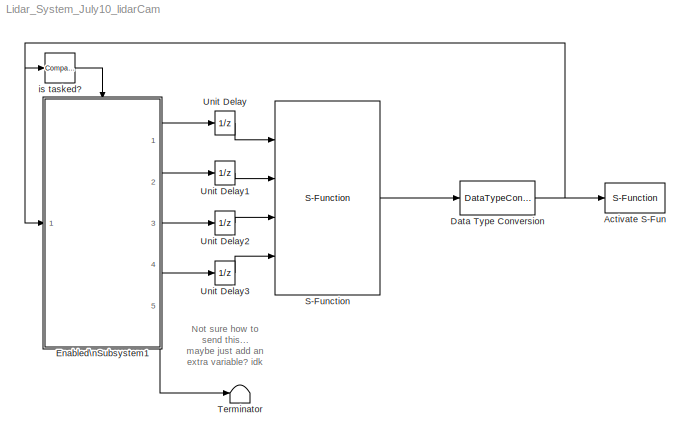
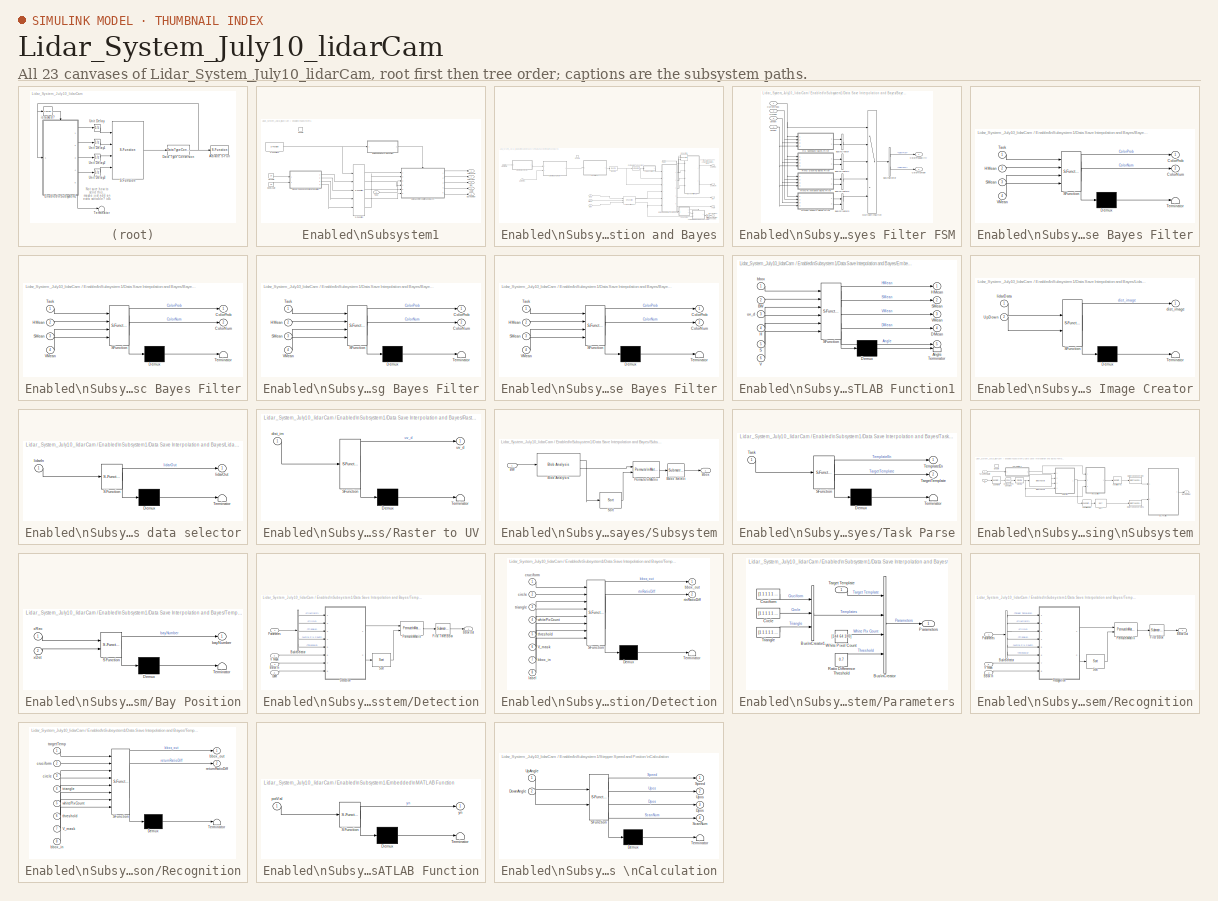
[diagram: thumbnail index - all 23 canvases of the model, root first then tree order]
MODEL Lidar_System_July10_lidarCam
KIND model
BLOCK [S-Function] Activate S-Fun
  EnableBusSupport = off
  FunctionName = printOut
  Ports = [1]
BLOCK [DataTypeConversion] Data Type Conversion
  OutDataType = fixdt(1, 16)
  OutDataTypeMode = uint32
  OutDataTypeStr = uint32
  OutScaling = 2^0
  RndMeth = Floor
  SaturateOnIntegerOverflow = off
BLOCK [SubSystem] Enabled\nSubsystem1
  FunctionWithSeparateData = off
  MaskHideContents = off
  MinAlgLoopOccurrences = off
  Opaque = off
  Ports = [1, 5, 1]
  PropExecContextOutsideSubsystem = off
  RTWSystemCode = Auto
  RequestExecContextInheritance = off
  TreatAsAtomicUnit = on
BLOCK [Outport] Enabled\nSubsystem1/Angle
  IconDisplay = Port number
  OutDataType = fixdt(1, 16)
  OutScaling = 2^0
  Port = 4
BLOCK [Outport] Enabled\nSubsystem1/Bay Number
  IconDisplay = Port number
  OutDataType = fixdt(1, 16)
  OutScaling = 2^0
  Port = 5
BLOCK [Outport] Enabled\nSubsystem1/ColorNum
  IconDisplay = Port number
  OutDataType = fixdt(1, 16)
  OutScaling = 2^0
  Port = 2
BLOCK [Outport] Enabled\nSubsystem1/ColorProb
  IconDisplay = Port number
  OutDataType = fixdt(1, 16)
  OutScaling = 2^0
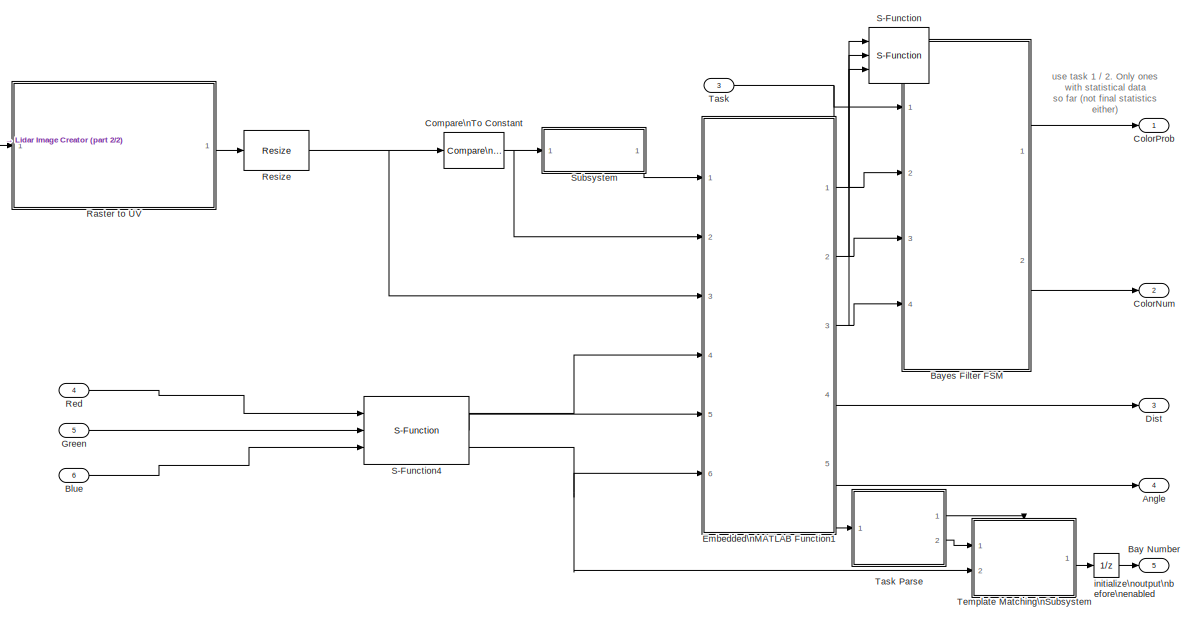
[diagram: Enabled\nSubsystem1/Data Save Interpolation and Bayes - part 1/2, right side, full height]
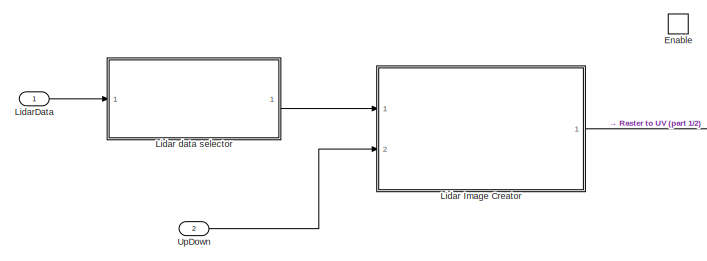
[diagram: Enabled\nSubsystem1/Data Save Interpolation and Bayes - part 2/2, top left region]
BLOCK [SubSystem] Enabled\nSubsystem1/Data Save Interpolation and Bayes
  FunctionWithSeparateData = off
  MaskHideContents = off
  MinAlgLoopOccurrences = off
  Opaque = off
  Ports = [6, 5, 1]
  PropExecContextOutsideSubsystem = off
  RTWSystemCode = Auto
  RequestExecContextInheritance = off
  TreatAsAtomicUnit = on
BLOCK [Outport] Enabled\nSubsystem1/Data Save Interpolation and Bayes/Angle
  IconDisplay = Port number
  OutDataType = fixdt(1, 16)
  OutScaling = 2^0
  Port = 4
BLOCK [Outport] Enabled\nSubsystem1/Data Save Interpolation and Bayes/Bay Number
  IconDisplay = Port number
  OutDataType = fixdt(1, 16)
  OutScaling = 2^0
  Port = 5
BLOCK [SubSystem] Enabled\nSubsystem1/Data Save Interpolation and Bayes/Bayes Filter FSM
  FunctionWithSeparateData = off
  MaskHideContents = off
  MinAlgLoopOccurrences = off
  Opaque = off
  Ports = [4, 2]
  PropExecContextOutsideSubsystem = off
  RTWSystemCode = Auto
  RequestExecContextInheritance = off
BLOCK [BusCreator] Enabled\nSubsystem1/Data Save Interpolation and Bayes/Bayes Filter FSM/Bus\nCreator
  DisplayOption = bar
  Inputs = 2
  Ports = [2, 1]
BLOCK [BusCreator] Enabled\nSubsystem1/Data Save Interpolation and Bayes/Bayes Filter FSM/Bus\nCreator1
  DisplayOption = bar
  Inputs = 2
  Ports = [2, 1]
BLOCK [BusCreator] Enabled\nSubsystem1/Data Save Interpolation and Bayes/Bayes Filter FSM/Bus\nCreator2
  DisplayOption = bar
  Inputs = 2
  Ports = [2, 1]
BLOCK [BusCreator] Enabled\nSubsystem1/Data Save Interpolation and Bayes/Bayes Filter FSM/Bus\nCreator3
  DisplayOption = bar
  Inputs = 2
  Ports = [2, 1]
BLOCK [BusSelector] Enabled\nSubsystem1/Data Save Interpolation and Bayes/Bayes Filter FSM/Bus\nSelector
  OutputSignals = ColorProb,ColorNum
  Ports = [1, 2]
BLOCK [Outport] Enabled\nSubsystem1/Data Save Interpolation and Bayes/Bayes Filter FSM/ColorNumber
  IconDisplay = Port number
  OutDataType = fixdt(1, 16)
  OutScaling = 2^0
  Port = 2
BLOCK [Outport] Enabled\nSubsystem1/Data Save Interpolation and Bayes/Bayes Filter FSM/ColorProbability
  IconDisplay = Port number
  OutDataType = fixdt(1, 16)
  OutScaling = 2^0
BLOCK [Inport] Enabled\nSubsystem1/Data Save Interpolation and Bayes/Bayes Filter FSM/CurrentTask
  IconDisplay = Port number
  OutDataType = fixdt(1, 16)
  OutScaling = 2^0
BLOCK [Inport] Enabled\nSubsystem1/Data Save Interpolation and Bayes/Bayes Filter FSM/HMean
  IconDisplay = Port number
  OutDataType = fixdt(1, 16)
  OutScaling = 2^0
  Port = 2
BLOCK [MultiPortSwitch] Enabled\nSubsystem1/Data Save Interpolation and Bayes/Bayes Filter FSM/Multiport\nSwitch
  InputSameDT = off
  Inputs = 4
  OutDataType = fixdt(1, 16)
  OutScaling = 2^0
  Ports = [5, 1]
  SaturateOnIntegerOverflow = off
BLOCK [SubSystem] Enabled\nSubsystem1/Data Save Interpolation and Bayes/Bayes Filter FSM/RG Speedgate Bayes Filter
  FunctionWithSeparateData = off
  MaskDescription = Embedded MATLAB block
  MaskDisplay = disp('BayesFilter');
  MaskHideContents = off
  MaskIconFrame = on
  MaskIconOpaque = off
  MaskIconRotate = none
  MaskIconUnits = autoscale
  MaskPortRotate = default
  MaskSelfModifiable = on
  MaskType = Stateflow
  MinAlgLoopOccurrences = off
  Opaque = off
  PermitHierarchicalResolution = ExplicitOnly
  Ports = [4, 2]
  PropExecContextOutsideSubsystem = off
  RTWSystemCode = Auto
  RequestExecContextInheritance = off
BLOCK [Demux] Enabled\nSubsystem1/Data Save Interpolation and Bayes/Bayes Filter FSM/RG Speedgate Bayes Filter/ Demux 
  Outputs = 1
  Ports = [1, 1]
BLOCK [S-Function] Enabled\nSubsystem1/Data Save Interpolation and Bayes/Bayes Filter FSM/RG Speedgate Bayes Filter/ SFunction 
  EnableBusSupport = on
  FunctionName = sf_sfun
  PortCounts = [4 3]
  Ports = [4, 3]
  Tag = Stateflow S-Function Lidar_System_July10_lidarCam 1
BLOCK [Terminator] Enabled\nSubsystem1/Data Save Interpolation and Bayes/Bayes Filter FSM/RG Speedgate Bayes Filter/ Terminator 
BLOCK [Outport] Enabled\nSubsystem1/Data Save Interpolation and Bayes/Bayes Filter FSM/RG Speedgate Bayes Filter/ColorNum
  IconDisplay = Port number
  Port = 2
BLOCK [Outport] Enabled\nSubsystem1/Data Save Interpolation and Bayes/Bayes Filter FSM/RG Speedgate Bayes Filter/ColorProb
  IconDisplay = Port number
  OutDataType = sfix(16)
  OutScaling = 2^0
BLOCK [Inport] Enabled\nSubsystem1/Data Save Interpolation and Bayes/Bayes Filter FSM/RG Speedgate Bayes Filter/HMean
  IconDisplay = Port number
  OutDataType = sfix(16)
  OutScaling = 2^0
  Port = 2
BLOCK [Inport] Enabled\nSubsystem1/Data Save Interpolation and Bayes/Bayes Filter FSM/RG Speedgate Bayes Filter/SMean
  IconDisplay = Port number
  Port = 3
BLOCK [Inport] Enabled\nSubsystem1/Data Save Interpolation and Bayes/Bayes Filter FSM/RG Speedgate Bayes Filter/Task
  IconDisplay = Port number
BLOCK [Inport] Enabled\nSubsystem1/Data Save Interpolation and Bayes/Bayes Filter FSM/RG Speedgate Bayes Filter/VMean
  IconDisplay = Port number
  Port = 4
BLOCK [SubSystem] Enabled\nSubsystem1/Data Save Interpolation and Bayes/Bayes Filter FSM/RGBYK Acoustic Bayes Filter
  FunctionWithSeparateData = off
  MaskDescription = Embedded MATLAB block
  MaskDisplay = disp('BayesFilter');
  MaskHideContents = off
  MaskIconFrame = on
  MaskIconOpaque = off
  MaskIconRotate = none
  MaskIconUnits = autoscale
  MaskPortRotate = default
  MaskSelfModifiable = on
  MaskType = Stateflow
  MinAlgLoopOccurrences = off
  Opaque = off
  PermitHierarchicalResolution = ExplicitOnly
  Ports = [4, 2]
  PropExecContextOutsideSubsystem = off
  RTWSystemCode = Auto
  RequestExecContextInheritance = off
BLOCK [Demux] Enabled\nSubsystem1/Data Save Interpolation and Bayes/Bayes Filter FSM/RGBYK Acoustic Bayes Filter/ Demux 
  Outputs = 1
  Ports = [1, 1]
BLOCK [S-Function] Enabled\nSubsystem1/Data Save Interpolation and Bayes/Bayes Filter FSM/RGBYK Acoustic Bayes Filter/ SFunction 
  EnableBusSupport = on
  FunctionName = sf_sfun
  PortCounts = [4 3]
  Ports = [4, 3]
  Tag = Stateflow S-Function Lidar_System_July10_lidarCam 3
BLOCK [Terminator] Enabled\nSubsystem1/Data Save Interpolation and Bayes/Bayes Filter FSM/RGBYK Acoustic Bayes Filter/ Terminator 
BLOCK [Outport] Enabled\nSubsystem1/Data Save Interpolation and Bayes/Bayes Filter FSM/RGBYK Acoustic Bayes Filter/ColorNum
  IconDisplay = Port number
  Port = 2
BLOCK [Outport] Enabled\nSubsystem1/Data Save Interpolation and Bayes/Bayes Filter FSM/RGBYK Acoustic Bayes Filter/ColorProb
  IconDisplay = Port number
  OutDataType = sfix(16)
  OutScaling = 2^0
BLOCK [Inport] Enabled\nSubsystem1/Data Save Interpolation and Bayes/Bayes Filter FSM/RGBYK Acoustic Bayes Filter/HMean
  IconDisplay = Port number
  OutDataType = sfix(16)
  OutScaling = 2^0
  Port = 2
BLOCK [Inport] Enabled\nSubsystem1/Data Save Interpolation and Bayes/Bayes Filter FSM/RGBYK Acoustic Bayes Filter/SMean
  IconDisplay = Port number
  Port = 3
BLOCK [Inport] Enabled\nSubsystem1/Data Save Interpolation and Bayes/Bayes Filter FSM/RGBYK Acoustic Bayes Filter/Task
  IconDisplay = Port number
BLOCK [Inport] Enabled\nSubsystem1/Data Save Interpolation and Bayes/Bayes Filter FSM/RGBYK Acoustic Bayes Filter/VMean
  IconDisplay = Port number
  Port = 4
BLOCK [SubSystem] Enabled\nSubsystem1/Data Save Interpolation and Bayes/Bayes Filter FSM/RWG Docking Bayes Filter
  FunctionWithSeparateData = off
  MaskDescription = Embedded MATLAB block
  MaskDisplay = disp('BayesFilter');
  MaskHideContents = off
  MaskIconFrame = on
  MaskIconOpaque = off
  MaskIconRotate = none
  MaskIconUnits = autoscale
  MaskPortRotate = default
  MaskSelfModifiable = on
  MaskType = Stateflow
  MinAlgLoopOccurrences = off
  Opaque = off
  PermitHierarchicalResolution = ExplicitOnly
  Ports = [4, 2]
  PropExecContextOutsideSubsystem = off
  RTWSystemCode = Auto
  RequestExecContextInheritance = off
BLOCK [Demux] Enabled\nSubsystem1/Data Save Interpolation and Bayes/Bayes Filter FSM/RWG Docking Bayes Filter/ Demux 
  Outputs = 1
  Ports = [1, 1]
BLOCK [S-Function] Enabled\nSubsystem1/Data Save Interpolation and Bayes/Bayes Filter FSM/RWG Docking Bayes Filter/ SFunction 
  EnableBusSupport = on
  FunctionName = sf_sfun
  PortCounts = [4 3]
  Ports = [4, 3]
  Tag = Stateflow S-Function Lidar_System_July10_lidarCam 9
BLOCK [Terminator] Enabled\nSubsystem1/Data Save Interpolation and Bayes/Bayes Filter FSM/RWG Docking Bayes Filter/ Terminator 
BLOCK [Outport] Enabled\nSubsystem1/Data Save Interpolation and Bayes/Bayes Filter FSM/RWG Docking Bayes Filter/ColorNum
  IconDisplay = Port number
  Port = 2
BLOCK [Outport] Enabled\nSubsystem1/Data Save Interpolation and Bayes/Bayes Filter FSM/RWG Docking Bayes Filter/ColorProb
  IconDisplay = Port number
  OutDataType = sfix(16)
  OutScaling = 2^0
BLOCK [Inport] Enabled\nSubsystem1/Data Save Interpolation and Bayes/Bayes Filter FSM/RWG Docking Bayes Filter/HMean
  IconDisplay = Port number
  OutDataType = sfix(16)
  OutScaling = 2^0
  Port = 2
BLOCK [Inport] Enabled\nSubsystem1/Data Save Interpolation and Bayes/Bayes Filter FSM/RWG Docking Bayes Filter/SMean
  IconDisplay = Port number
  Port = 3
BLOCK [Inport] Enabled\nSubsystem1/Data Save Interpolation and Bayes/Bayes Filter FSM/RWG Docking Bayes Filter/Task
  IconDisplay = Port number
BLOCK [Inport] Enabled\nSubsystem1/Data Save Interpolation and Bayes/Bayes Filter FSM/RWG Docking Bayes Filter/VMean
  IconDisplay = Port number
  Port = 4
BLOCK [SubSystem] Enabled\nSubsystem1/Data Save Interpolation and Bayes/Bayes Filter FSM/RWGYK Avoidance Bayes Filter
  FunctionWithSeparateData = off
  MaskDescription = Embedded MATLAB block
  MaskDisplay = disp('BayesFilter');
  MaskHideContents = off
  MaskIconFrame = on
  MaskIconOpaque = off
  MaskIconRotate = none
  MaskIconUnits = autoscale
  MaskPortRotate = default
  MaskSelfModifiable = on
  MaskType = Stateflow
  MinAlgLoopOccurrences = off
  Opaque = off
  PermitHierarchicalResolution = ExplicitOnly
  Ports = [4, 2]
  PropExecContextOutsideSubsystem = off
  RTWSystemCode = Auto
  RequestExecContextInheritance = off
BLOCK [Demux] Enabled\nSubsystem1/Data Save Interpolation and Bayes/Bayes Filter FSM/RWGYK Avoidance Bayes Filter/ Demux 
  Outputs = 1
  Ports = [1, 1]
BLOCK [S-Function] Enabled\nSubsystem1/Data Save Interpolation and Bayes/Bayes Filter FSM/RWGYK Avoidance Bayes Filter/ SFunction 
  EnableBusSupport = on
  FunctionName = sf_sfun
  PortCounts = [4 3]
  Ports = [4, 3]
  Tag = Stateflow S-Function Lidar_System_July10_lidarCam 2
BLOCK [Terminator] Enabled\nSubsystem1/Data Save Interpolation and Bayes/Bayes Filter FSM/RWGYK Avoidance Bayes Filter/ Terminator 
BLOCK [Outport] Enabled\nSubsystem1/Data Save Interpolation and Bayes/Bayes Filter FSM/RWGYK Avoidance Bayes Filter/ColorNum
  IconDisplay = Port number
  Port = 2
BLOCK [Outport] Enabled\nSubsystem1/Data Save Interpolation and Bayes/Bayes Filter FSM/RWGYK Avoidance Bayes Filter/ColorProb
  IconDisplay = Port number
  OutDataType = sfix(16)
  OutScaling = 2^0
BLOCK [Inport] Enabled\nSubsystem1/Data Save Interpolation and Bayes/Bayes Filter FSM/RWGYK Avoidance Bayes Filter/HMean
  IconDisplay = Port number
  OutDataType = sfix(16)
  OutScaling = 2^0
  Port = 2
BLOCK [Inport] Enabled\nSubsystem1/Data Save Interpolation and Bayes/Bayes Filter FSM/RWGYK Avoidance Bayes Filter/SMean
  IconDisplay = Port number
  Port = 3
BLOCK [Inport] Enabled\nSubsystem1/Data Save Interpolation and Bayes/Bayes Filter FSM/RWGYK Avoidance Bayes Filter/Task
  IconDisplay = Port number
BLOCK [Inport] Enabled\nSubsystem1/Data Save Interpolation and Bayes/Bayes Filter FSM/RWGYK Avoidance Bayes Filter/VMean
  IconDisplay = Port number
  Port = 4
BLOCK [Inport] Enabled\nSubsystem1/Data Save Interpolation and Bayes/Bayes Filter FSM/SMean
  IconDisplay = Port number
  OutDataType = fixdt(1, 16)
  OutScaling = 2^0
  Port = 3
BLOCK [Inport] Enabled\nSubsystem1/Data Save Interpolation and Bayes/Bayes Filter FSM/VMean
  IconDisplay = Port number
  OutDataType = fixdt(1, 16)
  OutScaling = 2^0
  Port = 4
BLOCK [Inport] Enabled\nSubsystem1/Data Save Interpolation and Bayes/Blue
  IconDisplay = Port number
  OutDataType = fixdt(1, 16)
  OutScaling = 2^0
  Port = 6
BLOCK [Outport] Enabled\nSubsystem1/Data Save Interpolation and Bayes/ColorNum
  IconDisplay = Port number
  OutDataType = fixdt(1, 16)
  OutScaling = 2^0
  Port = 2
BLOCK [Outport] Enabled\nSubsystem1/Data Save Interpolation and Bayes/ColorProb
  IconDisplay = Port number
  OutDataType = fixdt(1, 16)
  OutScaling = 2^0
BLOCK [Reference] Enabled\nSubsystem1/Data Save Interpolation and Bayes/Compare\nTo Constant  REF=simulink/Logic and Bit\nOperations/Compare\nTo Constant
  FunctionWithSeparateData = off
  LogicOutDataTypeMode = boolean
  Ports = [1, 1]
  RTWMemSecDataConstants = Inherit from model
  RTWMemSecDataInternal = Inherit from model
  RTWMemSecDataParameters = Inherit from model
  RTWMemSecFuncExecute = Inherit from model
  RTWMemSecFuncInitTerm = Inherit from model
  ShowPortLabels = FromPortIcon
  SourceBlock = simulink/Logic and Bit\nOperations/Compare\nTo Constant
  SourceType = Compare To Constant
  SystemSampleTime = -1
  ZeroCross = off
  const = 3000
  relop = <=
BLOCK [Outport] Enabled\nSubsystem1/Data Save Interpolation and Bayes/Dist
  IconDisplay = Port number
  OutDataType = fixdt(1, 16)
  OutScaling = 2^0
  Port = 3
BLOCK [SubSystem] Enabled\nSubsystem1/Data Save Interpolation and Bayes/Embedded\nMATLAB Function1
  FunctionWithSeparateData = off
  MaskDescription = Embedded MATLAB block
  MaskDisplay = disp('bbox_hist');
  MaskHideContents = off
  MaskIconFrame = on
  MaskIconOpaque = off
  MaskIconRotate = none
  MaskIconUnits = autoscale
  MaskPortRotate = default
  MaskSelfModifiable = on
  MaskType = Stateflow
  MinAlgLoopOccurrences = off
  Opaque = off
  PermitHierarchicalResolution = ExplicitOnly
  Ports = [6, 5]
  PropExecContextOutsideSubsystem = off
  RTWSystemCode = Auto
  RequestExecContextInheritance = off
BLOCK [Demux] Enabled\nSubsystem1/Data Save Interpolation and Bayes/Embedded\nMATLAB Function1/ Demux 
  Outputs = 1
  Ports = [1, 1]
BLOCK [S-Function] Enabled\nSubsystem1/Data Save Interpolation and Bayes/Embedded\nMATLAB Function1/ SFunction 
  EnableBusSupport = on
  FunctionName = sf_sfun
  PortCounts = [6 6]
  Ports = [6, 6]
  Tag = Stateflow S-Function Lidar_System_July10_lidarCam 8
BLOCK [Terminator] Enabled\nSubsystem1/Data Save Interpolation and Bayes/Embedded\nMATLAB Function1/ Terminator 
BLOCK [Outport] Enabled\nSubsystem1/Data Save Interpolation and Bayes/Embedded\nMATLAB Function1/Angle
  IconDisplay = Port number
  Port = 5
BLOCK [Inport] Enabled\nSubsystem1/Data Save Interpolation and Bayes/Embedded\nMATLAB Function1/BW
  IconDisplay = Port number
  Port = 2
BLOCK [Outport] Enabled\nSubsystem1/Data Save Interpolation and Bayes/Embedded\nMATLAB Function1/DMean
  IconDisplay = Port number
  Port = 4
BLOCK [Inport] Enabled\nSubsystem1/Data Save Interpolation and Bayes/Embedded\nMATLAB Function1/H
  IconDisplay = Port number
  Port = 4
BLOCK [Outport] Enabled\nSubsystem1/Data Save Interpolation and Bayes/Embedded\nMATLAB Function1/HMean
  IconDisplay = Port number
  OutDataType = sfix(16)
  OutScaling = 2^0
BLOCK [Inport] Enabled\nSubsystem1/Data Save Interpolation and Bayes/Embedded\nMATLAB Function1/S
  IconDisplay = Port number
  Port = 5
BLOCK [Outport] Enabled\nSubsystem1/Data Save Interpolation and Bayes/Embedded\nMATLAB Function1/SMean
  IconDisplay = Port number
  Port = 2
BLOCK [Inport] Enabled\nSubsystem1/Data Save Interpolation and Bayes/Embedded\nMATLAB Function1/V
  IconDisplay = Port number
  Port = 6
BLOCK [Outport] Enabled\nSubsystem1/Data Save Interpolation and Bayes/Embedded\nMATLAB Function1/VMean
  IconDisplay = Port number
  Port = 3
BLOCK [Inport] Enabled\nSubsystem1/Data Save Interpolation and Bayes/Embedded\nMATLAB Function1/bbox
  IconDisplay = Port number
  OutDataType = sfix(16)
  OutScaling = 2^0
BLOCK [Inport] Enabled\nSubsystem1/Data Save Interpolation and Bayes/Embedded\nMATLAB Function1/uv_d
  IconDisplay = Port number
  Port = 3
BLOCK [EnablePort] Enabled\nSubsystem1/Data Save Interpolation and Bayes/Enable
  Ports = []
BLOCK [Inport] Enabled\nSubsystem1/Data Save Interpolation and Bayes/Green
  IconDisplay = Port number
  OutDataType = fixdt(1, 16)
  OutScaling = 2^0
  Port = 5
BLOCK [SubSystem] Enabled\nSubsystem1/Data Save Interpolation and Bayes/Lidar Image Creator
  FunctionWithSeparateData = off
  MaskDescription = Embedded MATLAB block
  MaskDisplay = disp('scanImages');
  MaskHideContents = off
  MaskIconFrame = on
  MaskIconOpaque = off
  MaskIconRotate = none
  MaskIconUnits = autoscale
  MaskPortRotate = default
  MaskSelfModifiable = on
  MaskType = Stateflow
  MinAlgLoopOccurrences = off
  Opaque = off
  PermitHierarchicalResolution = ExplicitOnly
  Ports = [2, 1]
  PropExecContextOutsideSubsystem = off
  RTWSystemCode = Auto
  RequestExecContextInheritance = off
BLOCK [Demux] Enabled\nSubsystem1/Data Save Interpolation and Bayes/Lidar Image Creator/ Demux 
  Outputs = 1
  Ports = [1, 1]
BLOCK [S-Function] Enabled\nSubsystem1/Data Save Interpolation and Bayes/Lidar Image Creator/ SFunction 
  EnableBusSupport = on
  FunctionName = sf_sfun
  PortCounts = [2 2]
  Ports = [2, 2]
  Tag = Stateflow S-Function Lidar_System_July10_lidarCam 10
BLOCK [Terminator] Enabled\nSubsystem1/Data Save Interpolation and Bayes/Lidar Image Creator/ Terminator 
BLOCK [Inport] Enabled\nSubsystem1/Data Save Interpolation and Bayes/Lidar Image Creator/UpDown
  IconDisplay = Port number
  Port = 2
BLOCK [Outport] Enabled\nSubsystem1/Data Save Interpolation and Bayes/Lidar Image Creator/dist_image
  IconDisplay = Port number
  OutDataType = sfix(16)
  OutScaling = 2^0
BLOCK [Inport] Enabled\nSubsystem1/Data Save Interpolation and Bayes/Lidar Image Creator/lidarData
  IconDisplay = Port number
  OutDataType = sfix(16)
  OutScaling = 2^0
BLOCK [SubSystem] Enabled\nSubsystem1/Data Save Interpolation and Bayes/Lidar data selector
  FunctionWithSeparateData = off
  MaskDescription = Embedded MATLAB block
  MaskDisplay = disp('data_selector');
  MaskHideContents = off
  MaskIconFrame = on
  MaskIconOpaque = off
  MaskIconRotate = none
  MaskIconUnits = autoscale
  MaskPortRotate = default
  MaskSelfModifiable = on
  MaskType = Stateflow
  MinAlgLoopOccurrences = off
  Opaque = off
  PermitHierarchicalResolution = ExplicitOnly
  Ports = [1, 1]
  PropExecContextOutsideSubsystem = off
  RTWSystemCode = Auto
  RequestExecContextInheritance = off
BLOCK [Demux] Enabled\nSubsystem1/Data Save Interpolation and Bayes/Lidar data selector/ Demux 
  Outputs = 1
  Ports = [1, 1]
BLOCK [S-Function] Enabled\nSubsystem1/Data Save Interpolation and Bayes/Lidar data selector/ SFunction 
  EnableBusSupport = on
  FunctionName = sf_sfun
  PortCounts = [1 2]
  Ports = [1, 2]
  Tag = Stateflow S-Function Lidar_System_July10_lidarCam 11
BLOCK [Terminator] Enabled\nSubsystem1/Data Save Interpolation and Bayes/Lidar data selector/ Terminator 
BLOCK [Inport] Enabled\nSubsystem1/Data Save Interpolation and Bayes/Lidar data selector/lidarIn
  IconDisplay = Port number
  OutDataType = sfix(16)
  OutScaling = 2^0
BLOCK [Outport] Enabled\nSubsystem1/Data Save Interpolation and Bayes/Lidar data selector/lidarOut
  IconDisplay = Port number
  OutDataType = sfix(16)
  OutScaling = 2^0
BLOCK [Inport] Enabled\nSubsystem1/Data Save Interpolation and Bayes/LidarData
  IconDisplay = Port number
  OutDataType = fixdt(1, 16)
  OutScaling = 2^0
BLOCK [SubSystem] Enabled\nSubsystem1/Data Save Interpolation and Bayes/Raster to UV
  FunctionWithSeparateData = off
  MaskDescription = Embedded MATLAB block
  MaskDisplay = disp('AngleMatch');
  MaskHideContents = off
  MaskIconFrame = on
  MaskIconOpaque = off
  MaskIconRotate = none
  MaskIconUnits = autoscale
  MaskPortRotate = default
  MaskSelfModifiable = on
  MaskType = Stateflow
  MinAlgLoopOccurrences = off
  Opaque = off
  PermitHierarchicalResolution = ExplicitOnly
  Ports = [1, 1]
  PropExecContextOutsideSubsystem = off
  RTWSystemCode = Auto
  RequestExecContextInheritance = off
BLOCK [Demux] Enabled\nSubsystem1/Data Save Interpolation and Bayes/Raster to UV/ Demux 
  Outputs = 1
  Ports = [1, 1]
BLOCK [S-Function] Enabled\nSubsystem1/Data Save Interpolation and Bayes/Raster to UV/ SFunction 
  EnableBusSupport = on
  FunctionName = sf_sfun
  PortCounts = [1 2]
  Ports = [1, 2]
  Tag = Stateflow S-Function Lidar_System_July10_lidarCam 5
BLOCK [Terminator] Enabled\nSubsystem1/Data Save Interpolation and Bayes/Raster to UV/ Terminator 
BLOCK [Inport] Enabled\nSubsystem1/Data Save Interpolation and Bayes/Raster to UV/dist_im
  IconDisplay = Port number
BLOCK [Outport] Enabled\nSubsystem1/Data Save Interpolation and Bayes/Raster to UV/uv_d
  IconDisplay = Port number
  OutDataType = sfix(16)
  OutScaling = 2^0
BLOCK [Inport] Enabled\nSubsystem1/Data Save Interpolation and Bayes/Red
  IconDisplay = Port number
  OutDataType = fixdt(1, 16)
  OutScaling = 2^0
  Port = 4
BLOCK [Reference] Enabled\nSubsystem1/Data Save Interpolation and Bayes/Resize  REF=vipgeotforms/Resize
  DialogController = vipDDGCreate
  DialogControllerArgs = DataTag0
  LockScale = off
  Ports = [1, 1]
  SourceBlock = vipgeotforms/Resize
  SourceType = Resize
  accumFracLength = 10
  accumMode = Same as product output
  accumWordLength = 32
  antialias = on
  firstCoeffFracLength = 31
  firstCoeffMode = Same word length as input
  firstCoeffWordLength = 32
  interp_method = Bilinear
  outCols = 25
  outRows = 25
  outRowsCols = [480 640]
  outputFracLength = 10
  outputMode = Same as input
  outputWordLength = 32
  overflowMode = on
  prodOutputFracLength = 10
  prodOutputMode = Binary point scaling
  prodOutputWordLength = 32
  rfactor = [200 150]
  roiFlag = off
  roundingMode = Nearest
  specify = Number of output rows and columns
  useROI = off
BLOCK [S-Function] Enabled\nSubsystem1/Data Save Interpolation and Bayes/S-Function
  EnableBusSupport = off
  FunctionName = meanPrint
  Ports = [3]
BLOCK [S-Function] Enabled\nSubsystem1/Data Save Interpolation and Bayes/S-Function4
  EnableBusSupport = off
  FunctionName = rgbtohsv_sfunV2
  Ports = [3, 3]
BLOCK [SubSystem] Enabled\nSubsystem1/Data Save Interpolation and Bayes/Subsystem
  FunctionWithSeparateData = off
  MaskHideContents = off
  MinAlgLoopOccurrences = off
  Opaque = off
  Ports = [1, 1]
  PropExecContextOutsideSubsystem = off
  RTWSystemCode = Auto
  RequestExecContextInheritance = off
BLOCK [Inport] Enabled\nSubsystem1/Data Save Interpolation and Bayes/Subsystem/BW
  IconDisplay = Port number
  OutDataType = fixdt(1, 16)
  OutScaling = 2^0
BLOCK [Outport] Enabled\nSubsystem1/Data Save Interpolation and Bayes/Subsystem/Bbox
  IconDisplay = Port number
  OutDataType = fixdt(1, 16)
  OutScaling = 2^0
BLOCK [Reference] Enabled\nSubsystem1/Data Save Interpolation and Bayes/Subsystem/Bbox Select  REF=dspmtrx3/Submatrix
  ColEndIndex = 1
  ColEndMode = Last
  ColSpan = One column
  ColStartIndex = 1
  ColStartMode = First
  Ports = [1, 1]
  RowEndIndex = 1
  RowEndMode = Last
  RowSpan = All rows
  RowStartIndex = 1
  RowStartMode = First
  SourceBlock = dspmtrx3/Submatrix
  SourceType = Submatrix
BLOCK [Reference] Enabled\nSubsystem1/Data Save Interpolation and Bayes/Subsystem/Blob Analysis  REF=vipstatistics/Blob Analysis
  DialogController = vipDDGCreate
  DialogControllerArgs = DataTag1
  LockScale = off
  Ports = [1, 2]
  SourceBlock = vipstatistics/Blob Analysis
  SourceType = Blob Analysis
  accumFracLength = 0
  accumMode = Binary point scaling
  accumWordLength = 32
  angle = off
  area = on
  bBox = on
  centroid = off
  conn = 8
  eccentricity = off
  equivDiameterSq = off
  excludeBorderBlob = off
  extent = off
  fillValues = -1
  firstCoeffFracLength = 14
  firstCoeffMode = Binary point scaling
  firstCoeffWordLength = 16
  isCount = off
  isFill = on
  isLabel = off
  isOutVarDim = off
  majorAxis = off
  maxArea = intmax('uint32')
  maxBlobs = 20
  memoryFracLength = 16
  memoryMode = Same as product output
  memoryWordLength = 32
  minArea = 20
  minorAxis = off
  outDT = double
  outputFracLength = 16
  outputMode = Binary point scaling
  outputWordLength = 32
  overflowMode = off
  perimeter = off
  prodOutputFracLength = 16
  prodOutputMode = Binary point scaling
  prodOutputWordLength = 32
  roundingMode = Floor
  secondCoeffFracLength = 16
  secondCoeffMode = Binary point scaling
  secondCoeffWordLength = 32
  useMaxArea = off
  useMinArea = on
  warnIfNumBlobsExceeded = on
BLOCK [Reference] Enabled\nSubsystem1/Data Save Interpolation and Bayes/Subsystem/Permute\nMatrix  REF=dspmtrx3/Permute\nMatrix
  Ports = [2, 1]
  SourceBlock = dspmtrx3/Permute\nMatrix
  SourceType = Permute Matrix
  ZeroOneIdxMode = One-based
  checkDims = off
  errmode = Clip index
  mode = Columns
BLOCK [Reference] Enabled\nSubsystem1/Data Save Interpolation and Bayes/Subsystem/Sort  REF=dspstat3/Sort
  DialogController = dspDDGCreate
  DialogControllerArgs = DataTag2
  LockScale = off
  Ports = [1, 1]
  SourceBlock = dspstat3/Sort
  SourceType = Sort
  accumFracLength = 30
  accumMode = Same as product output
  accumWordLength = 32
  additionalParams = off
  allowOverrides = on
  dir = Descending
  otype = Index
  overflowMode = off
  prodOutputFracLength = 30
  prodOutputMode = Same as input
  prodOutputWordLength = 32
  roundingMode = Floor
  sortAlg = Quick sort
BLOCK [Inport] Enabled\nSubsystem1/Data Save Interpolation and Bayes/Task
  IconDisplay = Port number
  OutDataType = fixdt(1, 16)
  OutScaling = 2^0
  Port = 3
BLOCK [SubSystem] Enabled\nSubsystem1/Data Save Interpolation and Bayes/Task Parse
  FunctionWithSeparateData = off
  MaskDescription = Embedded MATLAB block
  MaskDisplay = disp('TaskParse');
  MaskHideContents = off
  MaskIconFrame = on
  MaskIconOpaque = off
  MaskIconRotate = none
  MaskIconUnits = autoscale
  MaskPortRotate = default
  MaskSelfModifiable = on
  MaskType = Stateflow
  MinAlgLoopOccurrences = off
  Opaque = off
  PermitHierarchicalResolution = ExplicitOnly
  Ports = [1, 2]
  PropExecContextOutsideSubsystem = off
  RTWSystemCode = Auto
  RequestExecContextInheritance = off
BLOCK [Demux] Enabled\nSubsystem1/Data Save Interpolation and Bayes/Task Parse/ Demux 
  Outputs = 1
  Ports = [1, 1]
BLOCK [S-Function] Enabled\nSubsystem1/Data Save Interpolation and Bayes/Task Parse/ SFunction 
  EnableBusSupport = on
  FunctionName = sf_sfun
  PortCounts = [1 3]
  Ports = [1, 3]
  Tag = Stateflow S-Function Lidar_System_July10_lidarCam 12
BLOCK [Terminator] Enabled\nSubsystem1/Data Save Interpolation and Bayes/Task Parse/ Terminator 
BLOCK [Outport] Enabled\nSubsystem1/Data Save Interpolation and Bayes/Task Parse/TargetTemplate
  IconDisplay = Port number
  Port = 2
BLOCK [Inport] Enabled\nSubsystem1/Data Save Interpolation and Bayes/Task Parse/Task
  IconDisplay = Port number
  OutDataType = sfix(16)
  OutScaling = 2^0
BLOCK [Outport] Enabled\nSubsystem1/Data Save Interpolation and Bayes/Task Parse/TemplateEn
  IconDisplay = Port number
  OutDataType = sfix(16)
  OutScaling = 2^0
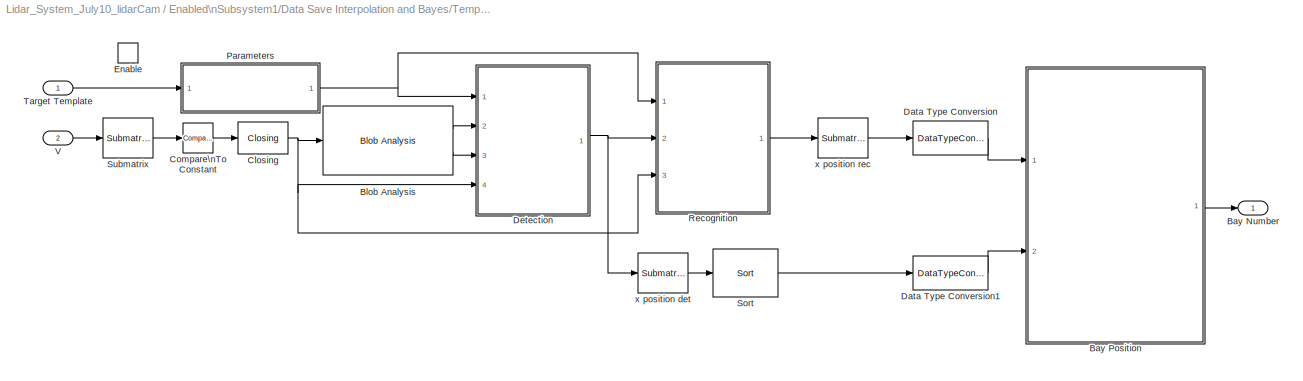
BLOCK [SubSystem] Enabled\nSubsystem1/Data Save Interpolation and Bayes/Template Matching\nSubsystem
  FunctionWithSeparateData = off
  MaskHideContents = off
  MinAlgLoopOccurrences = off
  Opaque = off
  Ports = [2, 1, 1]
  PropExecContextOutsideSubsystem = off
  RTWSystemCode = Auto
  RequestExecContextInheritance = off
  TreatAsAtomicUnit = on
BLOCK [Outport] Enabled\nSubsystem1/Data Save Interpolation and Bayes/Template Matching\nSubsystem/Bay Number
  IconDisplay = Port number
  OutDataType = fixdt(1, 16)
  OutScaling = 2^0
BLOCK [SubSystem] Enabled\nSubsystem1/Data Save Interpolation and Bayes/Template Matching\nSubsystem/Bay Position
  FunctionWithSeparateData = off
  MaskDescription = Embedded MATLAB block
  MaskDisplay = disp('bayPosition');
  MaskHideContents = off
  MaskIconFrame = on
  MaskIconOpaque = off
  MaskIconRotate = none
  MaskIconUnits = autoscale
  MaskPortRotate = default
  MaskSelfModifiable = on
  MaskType = Stateflow
  MinAlgLoopOccurrences = off
  Opaque = off
  PermitHierarchicalResolution = ExplicitOnly
  Ports = [2, 1]
  PropExecContextOutsideSubsystem = off
  RTWSystemCode = Auto
  RequestExecContextInheritance = off
BLOCK [Demux] Enabled\nSubsystem1/Data Save Interpolation and Bayes/Template Matching\nSubsystem/Bay Position/ Demux 
  Outputs = 1
  Ports = [1, 1]
BLOCK [S-Function] Enabled\nSubsystem1/Data Save Interpolation and Bayes/Template Matching\nSubsystem/Bay Position/ SFunction 
  EnableBusSupport = on
  FunctionName = sf_sfun
  PortCounts = [2 2]
  Ports = [2, 2]
  Tag = Stateflow S-Function Lidar_System_July10_lidarCam 7
BLOCK [Terminator] Enabled\nSubsystem1/Data Save Interpolation and Bayes/Template Matching\nSubsystem/Bay Position/ Terminator 
BLOCK [Outport] Enabled\nSubsystem1/Data Save Interpolation and Bayes/Template Matching\nSubsystem/Bay Position/bayNumber
  IconDisplay = Port number
  OutDataType = sfix(16)
  OutScaling = 2^0
BLOCK [Inport] Enabled\nSubsystem1/Data Save Interpolation and Bayes/Template Matching\nSubsystem/Bay Position/xDet
  IconDisplay = Port number
  Port = 2
BLOCK [Inport] Enabled\nSubsystem1/Data Save Interpolation and Bayes/Template Matching\nSubsystem/Bay Position/xRec
  IconDisplay = Port number
  OutDataType = sfix(16)
  OutScaling = 2^0
BLOCK [Reference] Enabled\nSubsystem1/Data Save Interpolation and Bayes/Template Matching\nSubsystem/Blob Analysis  REF=vipstatistics/Blob Analysis
  DialogController = vipDDGCreate
  DialogControllerArgs = DataTag3
  LockScale = off
  Ports = [1, 2]
  SourceBlock = vipstatistics/Blob Analysis
  SourceType = Blob Analysis
  accumFracLength = 0
  accumMode = Binary point scaling
  accumWordLength = 32
  angle = off
  area = off
  bBox = on
  centroid = off
  conn = 8
  eccentricity = off
  equivDiameterSq = off
  excludeBorderBlob = on
  extent = off
  fillValues = -1
  firstCoeffFracLength = 14
  firstCoeffMode = Binary point scaling
  firstCoeffWordLength = 16
  isCount = off
  isFill = on
  isLabel = on
  isOutVarDim = off
  majorAxis = off
  maxArea = intmax('uint32')
  maxBlobs = 10
  memoryFracLength = 16
  memoryMode = Same as product output
  memoryWordLength = 32
  minArea = 700
  minorAxis = off
  outDT = double
  outputFracLength = 16
  outputMode = Binary point scaling
  outputWordLength = 32
  overflowMode = off
  perimeter = off
  prodOutputFracLength = 16
  prodOutputMode = Binary point scaling
  prodOutputWordLength = 32
  roundingMode = Floor
  secondCoeffFracLength = 16
  secondCoeffMode = Binary point scaling
  secondCoeffWordLength = 32
  useMaxArea = off
  useMinArea = on
  warnIfNumBlobsExceeded = on
BLOCK [Reference] Enabled\nSubsystem1/Data Save Interpolation and Bayes/Template Matching\nSubsystem/Closing  REF=vipmorphops/Closing
  Ports = [1, 1]
  SourceBlock = vipmorphops/Closing
  SourceType = Closing
  nhoodsrc = Specify via dialog
  strel = strel('disk',1,4)
BLOCK [Reference] Enabled\nSubsystem1/Data Save Interpolation and Bayes/Template Matching\nSubsystem/Compare\nTo Constant  REF=simulink/Logic and Bit\nOperations/Compare\nTo Constant
  FunctionWithSeparateData = off
  LogicOutDataTypeMode = boolean
  Ports = [1, 1]
  RTWMemSecDataConstants = Inherit from model
  RTWMemSecDataInternal = Inherit from model
  RTWMemSecDataParameters = Inherit from model
  RTWMemSecFuncExecute = Inherit from model
  RTWMemSecFuncInitTerm = Inherit from model
  ShowPortLabels = FromPortIcon
  SourceBlock = simulink/Logic and Bit\nOperations/Compare\nTo Constant
  SourceType = Compare To Constant
  SystemSampleTime = -1
  ZeroCross = off
  const = 110
  relop = <=
BLOCK [DataTypeConversion] Enabled\nSubsystem1/Data Save Interpolation and Bayes/Template Matching\nSubsystem/Data Type Conversion
  OutDataType = fixdt(1, 16)
  OutDataTypeMode = int16
  OutDataTypeStr = int16
  OutScaling = 2^0
  RndMeth = Floor
  SaturateOnIntegerOverflow = off
BLOCK [DataTypeConversion] Enabled\nSubsystem1/Data Save Interpolation and Bayes/Template Matching\nSubsystem/Data Type Conversion1
  OutDataType = fixdt(1, 16)
  OutDataTypeMode = int16
  OutDataTypeStr = int16
  OutScaling = 2^0
  RndMeth = Floor
  SaturateOnIntegerOverflow = off
BLOCK [SubSystem] Enabled\nSubsystem1/Data Save Interpolation and Bayes/Template Matching\nSubsystem/Detection
  FunctionWithSeparateData = off
  MaskHideContents = off
  MinAlgLoopOccurrences = off
  Opaque = off
  Ports = [4, 1]
  PropExecContextOutsideSubsystem = off
  RTWSystemCode = Auto
  RequestExecContextInheritance = off
BLOCK [Inport] Enabled\nSubsystem1/Data Save Interpolation and Bayes/Template Matching\nSubsystem/Detection/BBox In
  IconDisplay = Port number
  OutDataType = fixdt(1, 16)
  OutScaling = 2^0
  Port = 2
BLOCK [Outport] Enabled\nSubsystem1/Data Save Interpolation and Bayes/Template Matching\nSubsystem/Detection/BBox Out
  IconDisplay = Port number
  OutDataType = fixdt(1, 16)
  OutScaling = 2^0
BLOCK [BusSelector] Enabled\nSubsystem1/Data Save Interpolation and Bayes/Template Matching\nSubsystem/Detection/Bus\nSelector
  OutputSignals = Templates.Cruciform,Templates.Circle,Templates.Triangle,White Pix Count,Threshold
  Ports = [1, 5]
BLOCK [SubSystem] Enabled\nSubsystem1/Data Save Interpolation and Bayes/Template Matching\nSubsystem/Detection/Detection
  FunctionWithSeparateData = off
  MaskDescription = Embedded MATLAB block
  MaskDisplay = disp('detection');
  MaskHideContents = off
  MaskIconFrame = on
  MaskIconOpaque = off
  MaskIconRotate = none
  MaskIconUnits = autoscale
  MaskPortRotate = default
  MaskSelfModifiable = on
  MaskType = Stateflow
  MinAlgLoopOccurrences = off
  Opaque = off
  PermitHierarchicalResolution = ExplicitOnly
  Ports = [8, 2]
  PropExecContextOutsideSubsystem = off
  RTWSystemCode = Auto
  RequestExecContextInheritance = off
BLOCK [Demux] Enabled\nSubsystem1/Data Save Interpolation and Bayes/Template Matching\nSubsystem/Detection/Detection/ Demux 
  Outputs = 1
  Ports = [1, 1]
BLOCK [S-Function] Enabled\nSubsystem1/Data Save Interpolation and Bayes/Template Matching\nSubsystem/Detection/Detection/ SFunction 
  EnableBusSupport = on
  FunctionName = sf_sfun
  PortCounts = [8 3]
  Ports = [8, 3]
  Tag = Stateflow S-Function Lidar_System_July10_lidarCam 4
BLOCK [Terminator] Enabled\nSubsystem1/Data Save Interpolation and Bayes/Template Matching\nSubsystem/Detection/Detection/ Terminator 
BLOCK [Inport] Enabled\nSubsystem1/Data Save Interpolation and Bayes/Template Matching\nSubsystem/Detection/Detection/V_mask
  IconDisplay = Port number
  Port = 6
BLOCK [Inport] Enabled\nSubsystem1/Data Save Interpolation and Bayes/Template Matching\nSubsystem/Detection/Detection/bbox_in
  IconDisplay = Port number
  Port = 7
BLOCK [Outport] Enabled\nSubsystem1/Data Save Interpolation and Bayes/Template Matching\nSubsystem/Detection/Detection/bbox_out
  IconDisplay = Port number
  OutDataType = sfix(16)
  OutScaling = 2^0
BLOCK [Inport] Enabled\nSubsystem1/Data Save Interpolation and Bayes/Template Matching\nSubsystem/Detection/Detection/circle
  IconDisplay = Port number
  Port = 2
BLOCK [Inport] Enabled\nSubsystem1/Data Save Interpolation and Bayes/Template Matching\nSubsystem/Detection/Detection/cruciform
  IconDisplay = Port number
  OutDataType = sfix(16)
  OutScaling = 2^0
BLOCK [Inport] Enabled\nSubsystem1/Data Save Interpolation and Bayes/Template Matching\nSubsystem/Detection/Detection/label
  IconDisplay = Port number
  Port = 8
BLOCK [Outport] Enabled\nSubsystem1/Data Save Interpolation and Bayes/Template Matching\nSubsystem/Detection/Detection/rtnRatioDiff
  IconDisplay = Port number
  Port = 2
BLOCK [Inport] Enabled\nSubsystem1/Data Save Interpolation and Bayes/Template Matching\nSubsystem/Detection/Detection/threshold
  IconDisplay = Port number
  Port = 5
BLOCK [Inport] Enabled\nSubsystem1/Data Save Interpolation and Bayes/Template Matching\nSubsystem/Detection/Detection/triangle
  IconDisplay = Port number
  Port = 3
BLOCK [Inport] Enabled\nSubsystem1/Data Save Interpolation and Bayes/Template Matching\nSubsystem/Detection/Detection/whitePixCount
  IconDisplay = Port number
  Port = 4
BLOCK [Reference] Enabled\nSubsystem1/Data Save Interpolation and Bayes/Template Matching\nSubsystem/Detection/First Three BBox  REF=dspmtrx3/Submatrix
  ColEndIndex = 3
  ColEndMode = Index
  ColSpan = Range of columns
  ColStartIndex = 1
  ColStartMode = First
  Ports = [1, 1]
  RowEndIndex = 1
  RowEndMode = Last
  RowSpan = All rows
  RowStartIndex = 1
  RowStartMode = First
  SourceBlock = dspmtrx3/Submatrix
  SourceType = Submatrix
BLOCK [Inport] Enabled\nSubsystem1/Data Save Interpolation and Bayes/Template Matching\nSubsystem/Detection/Label
  IconDisplay = Port number
  OutDataType = fixdt(1, 16)
  OutScaling = 2^0
  Port = 3
BLOCK [Inport] Enabled\nSubsystem1/Data Save Interpolation and Bayes/Template Matching\nSubsystem/Detection/Parameters
  IconDisplay = Port number
  OutDataType = fixdt(1, 16)
  OutScaling = 2^0
BLOCK [Reference] Enabled\nSubsystem1/Data Save Interpolation and Bayes/Template Matching\nSubsystem/Detection/Permute\nMatrix  REF=dspmtrx3/Permute\nMatrix
  Ports = [2, 1]
  SourceBlock = dspmtrx3/Permute\nMatrix
  SourceType = Permute Matrix
  ZeroOneIdxMode = One-based
  checkDims = off
  errmode = Clip index
  mode = Columns
BLOCK [Reference] Enabled\nSubsystem1/Data Save Interpolation and Bayes/Template Matching\nSubsystem/Detection/Sort  REF=dspstat3/Sort
  DialogController = dspDDGCreate
  DialogControllerArgs = DataTag4
  LockScale = off
  Ports = [1, 1]
  SourceBlock = dspstat3/Sort
  SourceType = Sort
  accumFracLength = 30
  accumMode = Same as product output
  accumWordLength = 32
  additionalParams = off
  allowOverrides = on
  dir = Ascending
  otype = Index
  overflowMode = off
  prodOutputFracLength = 30
  prodOutputMode = Same as input
  prodOutputWordLength = 32
  roundingMode = Floor
  sortAlg = Quick sort
BLOCK [Inport] Enabled\nSubsystem1/Data Save Interpolation and Bayes/Template Matching\nSubsystem/Detection/V Mask
  IconDisplay = Port number
  OutDataType = fixdt(1, 16)
  OutScaling = 2^0
  Port = 4
BLOCK [EnablePort] Enabled\nSubsystem1/Data Save Interpolation and Bayes/Template Matching\nSubsystem/Enable
  Ports = []
BLOCK [SubSystem] Enabled\nSubsystem1/Data Save Interpolation and Bayes/Template Matching\nSubsystem/Parameters
  FunctionWithSeparateData = off
  MaskHideContents = off
  MinAlgLoopOccurrences = off
  Opaque = off
  Ports = [1, 1]
  PropExecContextOutsideSubsystem = off
  RTWSystemCode = Auto
  RequestExecContextInheritance = off
BLOCK [BusCreator] Enabled\nSubsystem1/Data Save Interpolation and Bayes/Template Matching\nSubsystem/Parameters/Bus\nCreator
  DisplayOption = bar
  Ports = [4, 1]
BLOCK [BusCreator] Enabled\nSubsystem1/Data Save Interpolation and Bayes/Template Matching\nSubsystem/Parameters/Bus\nCreator1
  DisplayOption = bar
  Inputs = 3
  Ports = [3, 1]
BLOCK [Constant] Enabled\nSubsystem1/Data Save Interpolation and Bayes/Template Matching\nSubsystem/Parameters/Circle
  OutDataType = fixdt(1, 16)
  OutScaling = 2^0
  Value = [1	1	1	1	1	1	0	0	0	0	0	0	0	1	1	1	1	1	1\n1	1	1	1	0	0	0	0	0	0	0	0	0	0	0	1	1	1	1\n1	1	0	0	0	0	0	0	0	0	0	0	0	0	0	0	0	1	1\n1	1	0	0	0	0	0	0	0	0	0	0	0	0	0	0	0	1	1\n1	0	0	0	0	0	0	0	0	0	0	0	0	0	0	0	0	0	1\n1	0	0	0	0	0	0	0	0	0	0	0	0	0	0	0	0	0	1\n0	0	0	0	0	0	0	0	0	0	0	0	0	0	0	0	0	0	0\n0	0	0	0	0	0	0	0	0	0	0	0	0	0	0	0	0	0	0\n0	0	0	0	0	0	0	0	0	0	0	0	0	0	0	0	0	0	0\n0	0	0	0	0	0	0	0	0	0	0	0	0	0	0	0	0	0	0\n0	0	0	0	0...<+341ch>
BLOCK [Constant] Enabled\nSubsystem1/Data Save Interpolation and Bayes/Template Matching\nSubsystem/Parameters/Cruciform
  OutDataType = fixdt(1, 16)
  OutScaling = 2^0
  Value = [1	1	1	1	1	1	0	0	0	0	0	0	0	1	1	1	1	1	1\n1	1	1	1	1	1	0	0	0	0	0	0	0	1	1	1	1	1	1\n1	1	1	1	1	1	0	0	0	0	0	0	0	1	1	1	1	1	1\n1	1	1	1	1	1	0	0	0	0	0	0	0	1	1	1	1	1	1\n1	1	1	1	1	1	0	0	0	0	0	0	0	1	1	1	1	1	1\n1	1	1	1	1	1	0	0	0	0	0	0	0	1	1	1	1	1	1\n0	0	0	0	0	0	0	0	0	0	0	0	0	0	0	0	0	0	0\n0	0	0	0	0	0	0	0	0	0	0	0	0	0	0	0	0	0	0\n0	0	0	0	0	0	0	0	0	0	0	0	0	0	0	0	0	0	0\n0	0	0	0	0	0	0	0	0	0	0	0	0	0	0	0	0	0	0\n0	0	0	0	0...<+341ch>
BLOCK [Outport] Enabled\nSubsystem1/Data Save Interpolation and Bayes/Template Matching\nSubsystem/Parameters/Parameters
  IconDisplay = Port number
  OutDataType = fixdt(1, 16)
  OutScaling = 2^0
BLOCK [Constant] Enabled\nSubsystem1/Data Save Interpolation and Bayes/Template Matching\nSubsystem/Parameters/Ratio Difference Threshold
  OutDataType = fixdt(1, 16)
  OutScaling = 2^0
  Value = 0.7
BLOCK [Inport] Enabled\nSubsystem1/Data Save Interpolation and Bayes/Template Matching\nSubsystem/Parameters/Target Template
  IconDisplay = Port number
  OutDataType = fixdt(1, 16)
  OutScaling = 2^0
BLOCK [Constant] Enabled\nSubsystem1/Data Save Interpolation and Bayes/Template Matching\nSubsystem/Parameters/Triangle
  OutDataType = fixdt(1, 16)
  OutScaling = 2^0
  Value = [1	1	1	1	1	1	1	1	1	0	1	1	1	1	1	1	1	1	1\n1	1	1	1	1	1	1	1	1	0	1	1	1	1	1	1	1	1	1\n1	1	1	1	1	1	1	1	0	0	0	1	1	1	1	1	1	1	1\n1	1	1	1	1	1	1	1	0	0	0	1	1	1	1	1	1	1	1\n1	1	1	1	1	1	1	0	0	0	0	0	1	1	1	1	1	1	1\n1	1	1	1	1	1	1	0	0	0	0	0	1	1	1	1	1	1	1\n1	1	1	1	1	1	0	0	0	0	0	0	0	1	1	1	1	1	1\n1	1	1	1	1	1	0	0	0	0	0	0	0	1	1	1	1	1	1\n1	1	1	1	1	0	0	0	0	0	0	0	0	0	1	1	1	1	1\n1	1	1	1	1	0	0	0	0	0	0	0	0	0	1	1	1	1	1\n1	1	1	1	0...<+341ch>
BLOCK [Constant] Enabled\nSubsystem1/Data Save Interpolation and Bayes/Template Matching\nSubsystem/Parameters/White Pixel Count
  OutDataType = fixdt(1, 16)
  OutScaling = 2^0
  Value = [144 64 180]
BLOCK [SubSystem] Enabled\nSubsystem1/Data Save Interpolation and Bayes/Template Matching\nSubsystem/Recognition
  FunctionWithSeparateData = off
  MaskHideContents = off
  MinAlgLoopOccurrences = off
  Opaque = off
  Ports = [3, 1]
  PropExecContextOutsideSubsystem = off
  RTWSystemCode = Auto
  RequestExecContextInheritance = off
BLOCK [Inport] Enabled\nSubsystem1/Data Save Interpolation and Bayes/Template Matching\nSubsystem/Recognition/BBox In
  IconDisplay = Port number
  OutDataType = fixdt(1, 16)
  OutScaling = 2^0
  Port = 2
BLOCK [Outport] Enabled\nSubsystem1/Data Save Interpolation and Bayes/Template Matching\nSubsystem/Recognition/BBox Out
  IconDisplay = Port number
  OutDataType = fixdt(1, 16)
  OutScaling = 2^0
BLOCK [BusSelector] Enabled\nSubsystem1/Data Save Interpolation and Bayes/Template Matching\nSubsystem/Recognition/Bus\nSelector
  OutputSignals = Target Template,Templates.Cruciform,Templates.Circle,Templates.Triangle,White Pix Count,Threshold
  Ports = [1, 6]
BLOCK [Reference] Enabled\nSubsystem1/Data Save Interpolation and Bayes/Template Matching\nSubsystem/Recognition/First BBox  REF=dspmtrx3/Submatrix
  ColEndIndex = 3
  ColEndMode = Index
  ColSpan = One column
  ColStartIndex = 1
  ColStartMode = First
  Ports = [1, 1]
  RowEndIndex = 1
  RowEndMode = Last
  RowSpan = All rows
  RowStartIndex = 1
  RowStartMode = First
  SourceBlock = dspmtrx3/Submatrix
  SourceType = Submatrix
BLOCK [Inport] Enabled\nSubsystem1/Data Save Interpolation and Bayes/Template Matching\nSubsystem/Recognition/Parameters
  IconDisplay = Port number
  OutDataType = fixdt(1, 16)
  OutScaling = 2^0
BLOCK [Reference] Enabled\nSubsystem1/Data Save Interpolation and Bayes/Template Matching\nSubsystem/Recognition/Permute\nMatrix  REF=dspmtrx3/Permute\nMatrix
  Ports = [2, 1]
  SourceBlock = dspmtrx3/Permute\nMatrix
  SourceType = Permute Matrix
  ZeroOneIdxMode = One-based
  checkDims = off
  errmode = Clip index
  mode = Columns
BLOCK [SubSystem] Enabled\nSubsystem1/Data Save Interpolation and Bayes/Template Matching\nSubsystem/Recognition/Recognition
  FunctionWithSeparateData = off
  MaskDescription = Embedded MATLAB block
  MaskDisplay = disp('recognition');
  MaskHideContents = off
  MaskIconFrame = on
  MaskIconOpaque = off
  MaskIconRotate = none
  MaskIconUnits = autoscale
  MaskPortRotate = default
  MaskSelfModifiable = on
  MaskType = Stateflow
  MinAlgLoopOccurrences = off
  Opaque = off
  PermitHierarchicalResolution = ExplicitOnly
  Ports = [8, 2]
  PropExecContextOutsideSubsystem = off
  RTWSystemCode = Auto
  RequestExecContextInheritance = off
BLOCK [Demux] Enabled\nSubsystem1/Data Save Interpolation and Bayes/Template Matching\nSubsystem/Recognition/Recognition/ Demux 
  Outputs = 1
  Ports = [1, 1]
BLOCK [S-Function] Enabled\nSubsystem1/Data Save Interpolation and Bayes/Template Matching\nSubsystem/Recognition/Recognition/ SFunction 
  EnableBusSupport = on
  FunctionName = sf_sfun
  PortCounts = [8 3]
  Ports = [8, 3]
  Tag = Stateflow S-Function Lidar_System_July10_lidarCam 6
BLOCK [Terminator] Enabled\nSubsystem1/Data Save Interpolation and Bayes/Template Matching\nSubsystem/Recognition/Recognition/ Terminator 
BLOCK [Inport] Enabled\nSubsystem1/Data Save Interpolation and Bayes/Template Matching\nSubsystem/Recognition/Recognition/V_mask
  IconDisplay = Port number
  Port = 7
BLOCK [Inport] Enabled\nSubsystem1/Data Save Interpolation and Bayes/Template Matching\nSubsystem/Recognition/Recognition/bbox_in
  IconDisplay = Port number
  Port = 8
BLOCK [Outport] Enabled\nSubsystem1/Data Save Interpolation and Bayes/Template Matching\nSubsystem/Recognition/Recognition/bbox_out
  IconDisplay = Port number
  OutDataType = sfix(16)
  OutScaling = 2^0
BLOCK [Inport] Enabled\nSubsystem1/Data Save Interpolation and Bayes/Template Matching\nSubsystem/Recognition/Recognition/circle
  IconDisplay = Port number
  Port = 3
BLOCK [Inport] Enabled\nSubsystem1/Data Save Interpolation and Bayes/Template Matching\nSubsystem/Recognition/Recognition/cruciform
  IconDisplay = Port number
  OutDataType = sfix(16)
  OutScaling = 2^0
  Port = 2
BLOCK [Outport] Enabled\nSubsystem1/Data Save Interpolation and Bayes/Template Matching\nSubsystem/Recognition/Recognition/returnRatioDiff
  IconDisplay = Port number
  Port = 2
BLOCK [Inport] Enabled\nSubsystem1/Data Save Interpolation and Bayes/Template Matching\nSubsystem/Recognition/Recognition/targetTemp
  IconDisplay = Port number
BLOCK [Inport] Enabled\nSubsystem1/Data Save Interpolation and Bayes/Template Matching\nSubsystem/Recognition/Recognition/threshold
  IconDisplay = Port number
  Port = 6
BLOCK [Inport] Enabled\nSubsystem1/Data Save Interpolation and Bayes/Template Matching\nSubsystem/Recognition/Recognition/triangle
  IconDisplay = Port number
  Port = 4
BLOCK [Inport] Enabled\nSubsystem1/Data Save Interpolation and Bayes/Template Matching\nSubsystem/Recognition/Recognition/whitePixCount
  IconDisplay = Port number
  Port = 5
BLOCK [Reference] Enabled\nSubsystem1/Data Save Interpolation and Bayes/Template Matching\nSubsystem/Recognition/Sort  REF=dspstat3/Sort
  DialogController = dspDDGCreate
  DialogControllerArgs = DataTag5
  LockScale = off
  Ports = [1, 1]
  SourceBlock = dspstat3/Sort
  SourceType = Sort
  accumFracLength = 30
  accumMode = Same as product output
  accumWordLength = 32
  additionalParams = off
  allowOverrides = on
  dir = Ascending
  otype = Index
  overflowMode = off
  prodOutputFracLength = 30
  prodOutputMode = Same as input
  prodOutputWordLength = 32
  roundingMode = Floor
  sortAlg = Quick sort
BLOCK [Inport] Enabled\nSubsystem1/Data Save Interpolation and Bayes/Template Matching\nSubsystem/Recognition/V Mask
  IconDisplay = Port number
  OutDataType = fixdt(1, 16)
  OutScaling = 2^0
  Port = 3
BLOCK [Reference] Enabled\nSubsystem1/Data Save Interpolation and Bayes/Template Matching\nSubsystem/Sort  REF=dspstat3/Sort
  DialogController = dspDDGCreate
  DialogControllerArgs = DataTag6
  LockScale = off
  Ports = [1, 1]
  SourceBlock = dspstat3/Sort
  SourceType = Sort
  accumFracLength = 30
  accumMode = Same as product output
  accumWordLength = 32
  additionalParams = off
  allowOverrides = on
  dir = Ascending
  otype = Value
  overflowMode = off
  prodOutputFracLength = 30
  prodOutputMode = Same as input
  prodOutputWordLength = 32
  roundingMode = Floor
  sortAlg = Quick sort
BLOCK [Reference] Enabled\nSubsystem1/Data Save Interpolation and Bayes/Template Matching\nSubsystem/Submatrix  REF=dspmtrx3/Submatrix
  ColEndIndex = 1
  ColEndMode = Last
  ColSpan = Range of columns
  ColStartIndex = 1
  ColStartMode = First
  Ports = [1, 1]
  RowEndIndex = 240
  RowEndMode = Index
  RowSpan = Range of rows
  RowStartIndex = 1
  RowStartMode = First
  SourceBlock = dspmtrx3/Submatrix
  SourceType = Submatrix
BLOCK [Inport] Enabled\nSubsystem1/Data Save Interpolation and Bayes/Template Matching\nSubsystem/Target Template
  IconDisplay = Port number
  OutDataType = fixdt(1, 16)
  OutScaling = 2^0
BLOCK [Inport] Enabled\nSubsystem1/Data Save Interpolation and Bayes/Template Matching\nSubsystem/V
  IconDisplay = Port number
  OutDataType = fixdt(1, 16)
  OutScaling = 2^0
  Port = 2
BLOCK [Reference] Enabled\nSubsystem1/Data Save Interpolation and Bayes/Template Matching\nSubsystem/x position det  REF=dspmtrx3/Submatrix
  ColEndIndex = 1
  ColEndMode = Last
  ColSpan = Range of columns
  ColStartIndex = 1
  ColStartMode = First
  Ports = [1, 1]
  RowEndIndex = 1
  RowEndMode = Last
  RowSpan = One row
  RowStartIndex = 2
  RowStartMode = Index
  SourceBlock = dspmtrx3/Submatrix
  SourceType = Submatrix
BLOCK [Reference] Enabled\nSubsystem1/Data Save Interpolation and Bayes/Template Matching\nSubsystem/x position rec  REF=dspmtrx3/Submatrix
  ColEndIndex = 1
  ColEndMode = Last
  ColSpan = Range of columns
  ColStartIndex = 1
  ColStartMode = First
  Ports = [1, 1]
  RowEndIndex = 1
  RowEndMode = Last
  RowSpan = One row
  RowStartIndex = 2
  RowStartMode = Index
  SourceBlock = dspmtrx3/Submatrix
  SourceType = Submatrix
BLOCK [Inport] Enabled\nSubsystem1/Data Save Interpolation and Bayes/UpDown
  IconDisplay = Port number
  OutDataType = fixdt(1, 16)
  OutScaling = 2^0
  Port = 2
BLOCK [UnitDelay] Enabled\nSubsystem1/Data Save Interpolation and Bayes/initialize\noutput\nbefore\nenabled
  SampleTime = -1
BLOCK [Outport] Enabled\nSubsystem1/Dist
  IconDisplay = Port number
  OutDataType = fixdt(1, 16)
  OutScaling = 2^0
  Port = 3
BLOCK [Constant] Enabled\nSubsystem1/Down Angle
  OutDataType = fixdt(1, 16)
  OutScaling = 2^0
  Value = -45
BLOCK [SubSystem] Enabled\nSubsystem1/Embedded\nMATLAB Function
  FunctionWithSeparateData = off
  MaskDescription = Embedded MATLAB block
  MaskDisplay = disp('check_pot_val');
  MaskHideContents = off
  MaskIconFrame = on
  MaskIconOpaque = off
  MaskIconRotate = none
  MaskIconUnits = autoscale
  MaskPortRotate = default
  MaskSelfModifiable = on
  MaskType = Stateflow
  MinAlgLoopOccurrences = off
  Opaque = off
  PermitHierarchicalResolution = ExplicitOnly
  Ports = [1, 1]
  PropExecContextOutsideSubsystem = off
  RTWSystemCode = Auto
  RequestExecContextInheritance = off
BLOCK [Demux] Enabled\nSubsystem1/Embedded\nMATLAB Function/ Demux 
  Outputs = 1
  Ports = [1, 1]
BLOCK [S-Function] Enabled\nSubsystem1/Embedded\nMATLAB Function/ SFunction 
  EnableBusSupport = on
  FunctionName = sf_sfun
  PortCounts = [1 2]
  Ports = [1, 2]
  Tag = Stateflow S-Function Lidar_System_July10_lidarCam 13
BLOCK [Terminator] Enabled\nSubsystem1/Embedded\nMATLAB Function/ Terminator 
BLOCK [Inport] Enabled\nSubsystem1/Embedded\nMATLAB Function/potVal
  IconDisplay = Port number
  OutDataType = sfix(16)
  OutScaling = 2^0
BLOCK [Outport] Enabled\nSubsystem1/Embedded\nMATLAB Function/yn
  IconDisplay = Port number
  OutDataType = sfix(16)
  OutScaling = 2^0
BLOCK [EnablePort] Enabled\nSubsystem1/Enable
  Ports = []
BLOCK [S-Function] Enabled\nSubsystem1/S-Function
  EnableBusSupport = off
  FunctionName = lidarCam_sfunct
  Ports = [5, 5]
BLOCK [S-Function] Enabled\nSubsystem1/S-Function4
  EnableBusSupport = off
  FunctionName = TT_pot_readerV1
  Ports = [0, 1]
BLOCK [SubSystem] Enabled\nSubsystem1/Stepper Speed and Postion \nCalculation
  FunctionWithSeparateData = off
  MaskDescription = Embedded MATLAB block
  MaskDisplay = disp('stepper_calc');
  MaskHideContents = off
  MaskIconFrame = on
  MaskIconOpaque = off
  MaskIconRotate = none
  MaskIconUnits = autoscale
  MaskPortRotate = default
  MaskSelfModifiable = on
  MaskType = Stateflow
  MinAlgLoopOccurrences = off
  Opaque = off
  PermitHierarchicalResolution = ExplicitOnly
  Ports = [2, 4]
  PropExecContextOutsideSubsystem = off
  RTWSystemCode = Auto
  RequestExecContextInheritance = off
BLOCK [Demux] Enabled\nSubsystem1/Stepper Speed and Postion \nCalculation/ Demux 
  Outputs = 1
  Ports = [1, 1]
BLOCK [S-Function] Enabled\nSubsystem1/Stepper Speed and Postion \nCalculation/ SFunction 
  EnableBusSupport = on
  FunctionName = sf_sfun
  PortCounts = [2 5]
  Ports = [2, 5]
  Tag = Stateflow S-Function Lidar_System_July10_lidarCam 14
BLOCK [Terminator] Enabled\nSubsystem1/Stepper Speed and Postion \nCalculation/ Terminator 
BLOCK [Inport] Enabled\nSubsystem1/Stepper Speed and Postion \nCalculation/DownAngle
  IconDisplay = Port number
  Port = 2
BLOCK [Outport] Enabled\nSubsystem1/Stepper Speed and Postion \nCalculation/Dpos
  IconDisplay = Port number
  Port = 3
BLOCK [Outport] Enabled\nSubsystem1/Stepper Speed and Postion \nCalculation/ScanNum
  IconDisplay = Port number
  Port = 4
BLOCK [Outport] Enabled\nSubsystem1/Stepper Speed and Postion \nCalculation/Speed
  IconDisplay = Port number
  OutDataType = sfix(16)
  OutScaling = 2^0
BLOCK [Inport] Enabled\nSubsystem1/Stepper Speed and Postion \nCalculation/UpAngle
  IconDisplay = Port number
  OutDataType = sfix(16)
  OutScaling = 2^0
BLOCK [Outport] Enabled\nSubsystem1/Stepper Speed and Postion \nCalculation/Upos
  IconDisplay = Port number
  Port = 2
BLOCK [Inport] Enabled\nSubsystem1/Task
  IconDisplay = Port number
  OutDataType = fixdt(1, 16)
  OutScaling = 2^0
BLOCK [Constant] Enabled\nSubsystem1/Up Angle
  OutDataType = fixdt(1, 16)
  OutScaling = 2^0
  Value = 30
BLOCK [S-Function] S-Function
  EnableBusSupport = off
  FunctionName = serialComV3
  Ports = [4, 1]
BLOCK [Terminator] Terminator
BLOCK [UnitDelay] Unit Delay
  SampleTime = -1
BLOCK [UnitDelay] Unit Delay1
  SampleTime = -1
  X0 = int32(0)
BLOCK [UnitDelay] Unit Delay2
  SampleTime = -1
  X0 = int32(0)
BLOCK [UnitDelay] Unit Delay3
  SampleTime = -1
  X0 = int32(0)
BLOCK [Reference] is tasked?  REF=simulink/Logic and Bit\nOperations/Compare\nTo Constant
  FunctionWithSeparateData = off
  LogicOutDataTypeMode = uint8
  Ports = [1, 1]
  RTWMemSecDataConstants = Inherit from model
  RTWMemSecDataInternal = Inherit from model
  RTWMemSecDataParameters = Inherit from model
  RTWMemSecFuncExecute = Inherit from model
  RTWMemSecFuncInitTerm = Inherit from model
  ShowPortLabels = FromPortIcon
  SourceBlock = simulink/Logic and Bit\nOperations/Compare\nTo Constant
  SourceType = Compare To Constant
  SystemSampleTime = -1
  ZeroCross = off
  const = 0
  relop = >
ANNOTATION (root): Not sure how to\nsend this...\nmaybe just add an\nextra variable? idk
ANNOTATION Enabled\nSubsystem1/Data Save Interpolation and Bayes: use task 1 / 2. Only ones\nwith statistical data\nso far (not final statistics\neither)
NET Data Type Conversion:1 -> Activate S-Fun:1, Enabled\nSubsystem1:1, is tasked?:1
LINE Enabled\nSubsystem1/Data Save Interpolation and Bayes/Bayes Filter FSM/Bus\nCreator1:1 -> Enabled\nSubsystem1/Data Save Interpolation and Bayes/Bayes Filter FSM/Multiport\nSwitch:3
LINE Enabled\nSubsystem1/Data Save Interpolation and Bayes/Bayes Filter FSM/Bus\nCreator2:1 -> Enabled\nSubsystem1/Data Save Interpolation and Bayes/Bayes Filter FSM/Multiport\nSwitch:4
LINE Enabled\nSubsystem1/Data Save Interpolation and Bayes/Bayes Filter FSM/Bus\nCreator3:1 -> Enabled\nSubsystem1/Data Save Interpolation and Bayes/Bayes Filter FSM/Multiport\nSwitch:5
LINE Enabled\nSubsystem1/Data Save Interpolation and Bayes/Bayes Filter FSM/Bus\nCreator:1 -> Enabled\nSubsystem1/Data Save Interpolation and Bayes/Bayes Filter FSM/Multiport\nSwitch:2
LINE Enabled\nSubsystem1/Data Save Interpolation and Bayes/Bayes Filter FSM/Bus\nSelector:1 -> Enabled\nSubsystem1/Data Save Interpolation and Bayes/Bayes Filter FSM/ColorProbability:1
LINE Enabled\nSubsystem1/Data Save Interpolation and Bayes/Bayes Filter FSM/Bus\nSelector:2 -> Enabled\nSubsystem1/Data Save Interpolation and Bayes/Bayes Filter FSM/ColorNumber:1
NET Enabled\nSubsystem1/Data Save Interpolation and Bayes/Bayes Filter FSM/CurrentTask:1 -> Enabled\nSubsystem1/Data Save Interpolation and Bayes/Bayes Filter FSM/Multiport\nSwitch:1, Enabled\nSubsystem1/Data Save Interpolation and Bayes/Bayes Filter FSM/RG Speedgate Bayes Filter:1, Enabled\nSubsystem1/Data Save Interpolation and Bayes/Bayes Filter FSM/RGBYK Acoustic Bayes Filter:1, Enabled\nSubsystem1/Data Save Interpolation and Bayes/Bayes Filter FSM/RWG Docking Bayes Filter:1, Enabled\nSubsystem1/Data Save Interpolation and Bayes/Bayes Filter FSM/RWGYK Avoidance Bayes Filter:1
NET Enabled\nSubsystem1/Data Save Interpolation and Bayes/Bayes Filter FSM/HMean:1 -> Enabled\nSubsystem1/Data Save Interpolation and Bayes/Bayes Filter FSM/RG Speedgate Bayes Filter:2, Enabled\nSubsystem1/Data Save Interpolation and Bayes/Bayes Filter FSM/RGBYK Acoustic Bayes Filter:2, Enabled\nSubsystem1/Data Save Interpolation and Bayes/Bayes Filter FSM/RWG Docking Bayes Filter:2, Enabled\nSubsystem1/Data Save Interpolation and Bayes/Bayes Filter FSM/RWGYK Avoidance Bayes Filter:2
LINE Enabled\nSubsystem1/Data Save Interpolation and Bayes/Bayes Filter FSM/Multiport\nSwitch:1 -> Enabled\nSubsystem1/Data Save Interpolation and Bayes/Bayes Filter FSM/Bus\nSelector:1
LINE Enabled\nSubsystem1/Data Save Interpolation and Bayes/Bayes Filter FSM/RG Speedgate Bayes Filter/ Demux :1 -> Enabled\nSubsystem1/Data Save Interpolation and Bayes/Bayes Filter FSM/RG Speedgate Bayes Filter/ Terminator :1
LINE Enabled\nSubsystem1/Data Save Interpolation and Bayes/Bayes Filter FSM/RG Speedgate Bayes Filter/ SFunction :1 -> Enabled\nSubsystem1/Data Save Interpolation and Bayes/Bayes Filter FSM/RG Speedgate Bayes Filter/ Demux :1
LINE Enabled\nSubsystem1/Data Save Interpolation and Bayes/Bayes Filter FSM/RG Speedgate Bayes Filter/ SFunction :2 -> Enabled\nSubsystem1/Data Save Interpolation and Bayes/Bayes Filter FSM/RG Speedgate Bayes Filter/ColorProb:1
LINE Enabled\nSubsystem1/Data Save Interpolation and Bayes/Bayes Filter FSM/RG Speedgate Bayes Filter/ SFunction :3 -> Enabled\nSubsystem1/Data Save Interpolation and Bayes/Bayes Filter FSM/RG Speedgate Bayes Filter/ColorNum:1
LINE Enabled\nSubsystem1/Data Save Interpolation and Bayes/Bayes Filter FSM/RG Speedgate Bayes Filter/HMean:1 -> Enabled\nSubsystem1/Data Save Interpolation and Bayes/Bayes Filter FSM/RG Speedgate Bayes Filter/ SFunction :2
LINE Enabled\nSubsystem1/Data Save Interpolation and Bayes/Bayes Filter FSM/RG Speedgate Bayes Filter/SMean:1 -> Enabled\nSubsystem1/Data Save Interpolation and Bayes/Bayes Filter FSM/RG Speedgate Bayes Filter/ SFunction :3
LINE Enabled\nSubsystem1/Data Save Interpolation and Bayes/Bayes Filter FSM/RG Speedgate Bayes Filter/Task:1 -> Enabled\nSubsystem1/Data Save Interpolation and Bayes/Bayes Filter FSM/RG Speedgate Bayes Filter/ SFunction :1
LINE Enabled\nSubsystem1/Data Save Interpolation and Bayes/Bayes Filter FSM/RG Speedgate Bayes Filter/VMean:1 -> Enabled\nSubsystem1/Data Save Interpolation and Bayes/Bayes Filter FSM/RG Speedgate Bayes Filter/ SFunction :4
LINE Enabled\nSubsystem1/Data Save Interpolation and Bayes/Bayes Filter FSM/RG Speedgate Bayes Filter:1 -> Enabled\nSubsystem1/Data Save Interpolation and Bayes/Bayes Filter FSM/Bus\nCreator:1
LINE Enabled\nSubsystem1/Data Save Interpolation and Bayes/Bayes Filter FSM/RG Speedgate Bayes Filter:2 -> Enabled\nSubsystem1/Data Save Interpolation and Bayes/Bayes Filter FSM/Bus\nCreator:2
LINE Enabled\nSubsystem1/Data Save Interpolation and Bayes/Bayes Filter FSM/RGBYK Acoustic Bayes Filter/ Demux :1 -> Enabled\nSubsystem1/Data Save Interpolation and Bayes/Bayes Filter FSM/RGBYK Acoustic Bayes Filter/ Terminator :1
LINE Enabled\nSubsystem1/Data Save Interpolation and Bayes/Bayes Filter FSM/RGBYK Acoustic Bayes Filter/ SFunction :1 -> Enabled\nSubsystem1/Data Save Interpolation and Bayes/Bayes Filter FSM/RGBYK Acoustic Bayes Filter/ Demux :1
LINE Enabled\nSubsystem1/Data Save Interpolation and Bayes/Bayes Filter FSM/RGBYK Acoustic Bayes Filter/ SFunction :2 -> Enabled\nSubsystem1/Data Save Interpolation and Bayes/Bayes Filter FSM/RGBYK Acoustic Bayes Filter/ColorProb:1
LINE Enabled\nSubsystem1/Data Save Interpolation and Bayes/Bayes Filter FSM/RGBYK Acoustic Bayes Filter/ SFunction :3 -> Enabled\nSubsystem1/Data Save Interpolation and Bayes/Bayes Filter FSM/RGBYK Acoustic Bayes Filter/ColorNum:1
LINE Enabled\nSubsystem1/Data Save Interpolation and Bayes/Bayes Filter FSM/RGBYK Acoustic Bayes Filter/HMean:1 -> Enabled\nSubsystem1/Data Save Interpolation and Bayes/Bayes Filter FSM/RGBYK Acoustic Bayes Filter/ SFunction :2
LINE Enabled\nSubsystem1/Data Save Interpolation and Bayes/Bayes Filter FSM/RGBYK Acoustic Bayes Filter/SMean:1 -> Enabled\nSubsystem1/Data Save Interpolation and Bayes/Bayes Filter FSM/RGBYK Acoustic Bayes Filter/ SFunction :3
LINE Enabled\nSubsystem1/Data Save Interpolation and Bayes/Bayes Filter FSM/RGBYK Acoustic Bayes Filter/Task:1 -> Enabled\nSubsystem1/Data Save Interpolation and Bayes/Bayes Filter FSM/RGBYK Acoustic Bayes Filter/ SFunction :1
LINE Enabled\nSubsystem1/Data Save Interpolation and Bayes/Bayes Filter FSM/RGBYK Acoustic Bayes Filter/VMean:1 -> Enabled\nSubsystem1/Data Save Interpolation and Bayes/Bayes Filter FSM/RGBYK Acoustic Bayes Filter/ SFunction :4
LINE Enabled\nSubsystem1/Data Save Interpolation and Bayes/Bayes Filter FSM/RGBYK Acoustic Bayes Filter:1 -> Enabled\nSubsystem1/Data Save Interpolation and Bayes/Bayes Filter FSM/Bus\nCreator3:1
LINE Enabled\nSubsystem1/Data Save Interpolation and Bayes/Bayes Filter FSM/RGBYK Acoustic Bayes Filter:2 -> Enabled\nSubsystem1/Data Save Interpolation and Bayes/Bayes Filter FSM/Bus\nCreator3:2
LINE Enabled\nSubsystem1/Data Save Interpolation and Bayes/Bayes Filter FSM/RWG Docking Bayes Filter/ Demux :1 -> Enabled\nSubsystem1/Data Save Interpolation and Bayes/Bayes Filter FSM/RWG Docking Bayes Filter/ Terminator :1
LINE Enabled\nSubsystem1/Data Save Interpolation and Bayes/Bayes Filter FSM/RWG Docking Bayes Filter/ SFunction :1 -> Enabled\nSubsystem1/Data Save Interpolation and Bayes/Bayes Filter FSM/RWG Docking Bayes Filter/ Demux :1
LINE Enabled\nSubsystem1/Data Save Interpolation and Bayes/Bayes Filter FSM/RWG Docking Bayes Filter/ SFunction :2 -> Enabled\nSubsystem1/Data Save Interpolation and Bayes/Bayes Filter FSM/RWG Docking Bayes Filter/ColorProb:1
LINE Enabled\nSubsystem1/Data Save Interpolation and Bayes/Bayes Filter FSM/RWG Docking Bayes Filter/ SFunction :3 -> Enabled\nSubsystem1/Data Save Interpolation and Bayes/Bayes Filter FSM/RWG Docking Bayes Filter/ColorNum:1
LINE Enabled\nSubsystem1/Data Save Interpolation and Bayes/Bayes Filter FSM/RWG Docking Bayes Filter/HMean:1 -> Enabled\nSubsystem1/Data Save Interpolation and Bayes/Bayes Filter FSM/RWG Docking Bayes Filter/ SFunction :2
LINE Enabled\nSubsystem1/Data Save Interpolation and Bayes/Bayes Filter FSM/RWG Docking Bayes Filter/SMean:1 -> Enabled\nSubsystem1/Data Save Interpolation and Bayes/Bayes Filter FSM/RWG Docking Bayes Filter/ SFunction :3
LINE Enabled\nSubsystem1/Data Save Interpolation and Bayes/Bayes Filter FSM/RWG Docking Bayes Filter/Task:1 -> Enabled\nSubsystem1/Data Save Interpolation and Bayes/Bayes Filter FSM/RWG Docking Bayes Filter/ SFunction :1
LINE Enabled\nSubsystem1/Data Save Interpolation and Bayes/Bayes Filter FSM/RWG Docking Bayes Filter/VMean:1 -> Enabled\nSubsystem1/Data Save Interpolation and Bayes/Bayes Filter FSM/RWG Docking Bayes Filter/ SFunction :4
LINE Enabled\nSubsystem1/Data Save Interpolation and Bayes/Bayes Filter FSM/RWG Docking Bayes Filter:1 -> Enabled\nSubsystem1/Data Save Interpolation and Bayes/Bayes Filter FSM/Bus\nCreator1:1
LINE Enabled\nSubsystem1/Data Save Interpolation and Bayes/Bayes Filter FSM/RWG Docking Bayes Filter:2 -> Enabled\nSubsystem1/Data Save Interpolation and Bayes/Bayes Filter FSM/Bus\nCreator1:2
LINE Enabled\nSubsystem1/Data Save Interpolation and Bayes/Bayes Filter FSM/RWGYK Avoidance Bayes Filter/ Demux :1 -> Enabled\nSubsystem1/Data Save Interpolation and Bayes/Bayes Filter FSM/RWGYK Avoidance Bayes Filter/ Terminator :1
LINE Enabled\nSubsystem1/Data Save Interpolation and Bayes/Bayes Filter FSM/RWGYK Avoidance Bayes Filter/ SFunction :1 -> Enabled\nSubsystem1/Data Save Interpolation and Bayes/Bayes Filter FSM/RWGYK Avoidance Bayes Filter/ Demux :1
LINE Enabled\nSubsystem1/Data Save Interpolation and Bayes/Bayes Filter FSM/RWGYK Avoidance Bayes Filter/ SFunction :2 -> Enabled\nSubsystem1/Data Save Interpolation and Bayes/Bayes Filter FSM/RWGYK Avoidance Bayes Filter/ColorProb:1
LINE Enabled\nSubsystem1/Data Save Interpolation and Bayes/Bayes Filter FSM/RWGYK Avoidance Bayes Filter/ SFunction :3 -> Enabled\nSubsystem1/Data Save Interpolation and Bayes/Bayes Filter FSM/RWGYK Avoidance Bayes Filter/ColorNum:1
LINE Enabled\nSubsystem1/Data Save Interpolation and Bayes/Bayes Filter FSM/RWGYK Avoidance Bayes Filter/HMean:1 -> Enabled\nSubsystem1/Data Save Interpolation and Bayes/Bayes Filter FSM/RWGYK Avoidance Bayes Filter/ SFunction :2
LINE Enabled\nSubsystem1/Data Save Interpolation and Bayes/Bayes Filter FSM/RWGYK Avoidance Bayes Filter/SMean:1 -> Enabled\nSubsystem1/Data Save Interpolation and Bayes/Bayes Filter FSM/RWGYK Avoidance Bayes Filter/ SFunction :3
LINE Enabled\nSubsystem1/Data Save Interpolation and Bayes/Bayes Filter FSM/RWGYK Avoidance Bayes Filter/Task:1 -> Enabled\nSubsystem1/Data Save Interpolation and Bayes/Bayes Filter FSM/RWGYK Avoidance Bayes Filter/ SFunction :1
LINE Enabled\nSubsystem1/Data Save Interpolation and Bayes/Bayes Filter FSM/RWGYK Avoidance Bayes Filter/VMean:1 -> Enabled\nSubsystem1/Data Save Interpolation and Bayes/Bayes Filter FSM/RWGYK Avoidance Bayes Filter/ SFunction :4
LINE Enabled\nSubsystem1/Data Save Interpolation and Bayes/Bayes Filter FSM/RWGYK Avoidance Bayes Filter:1 -> Enabled\nSubsystem1/Data Save Interpolation and Bayes/Bayes Filter FSM/Bus\nCreator2:1
LINE Enabled\nSubsystem1/Data Save Interpolation and Bayes/Bayes Filter FSM/RWGYK Avoidance Bayes Filter:2 -> Enabled\nSubsystem1/Data Save Interpolation and Bayes/Bayes Filter FSM/Bus\nCreator2:2
NET Enabled\nSubsystem1/Data Save Interpolation and Bayes/Bayes Filter FSM/SMean:1 -> Enabled\nSubsystem1/Data Save Interpolation and Bayes/Bayes Filter FSM/RG Speedgate Bayes Filter:3, Enabled\nSubsystem1/Data Save Interpolation and Bayes/Bayes Filter FSM/RGBYK Acoustic Bayes Filter:3, Enabled\nSubsystem1/Data Save Interpolation and Bayes/Bayes Filter FSM/RWG Docking Bayes Filter:3, Enabled\nSubsystem1/Data Save Interpolation and Bayes/Bayes Filter FSM/RWGYK Avoidance Bayes Filter:3
NET Enabled\nSubsystem1/Data Save Interpolation and Bayes/Bayes Filter FSM/VMean:1 -> Enabled\nSubsystem1/Data Save Interpolation and Bayes/Bayes Filter FSM/RG Speedgate Bayes Filter:4, Enabled\nSubsystem1/Data Save Interpolation and Bayes/Bayes Filter FSM/RGBYK Acoustic Bayes Filter:4, Enabled\nSubsystem1/Data Save Interpolation and Bayes/Bayes Filter FSM/RWG Docking Bayes Filter:4, Enabled\nSubsystem1/Data Save Interpolation and Bayes/Bayes Filter FSM/RWGYK Avoidance Bayes Filter:4
LINE Enabled\nSubsystem1/Data Save Interpolation and Bayes/Bayes Filter FSM:1 -> Enabled\nSubsystem1/Data Save Interpolation and Bayes/ColorProb:1
LINE Enabled\nSubsystem1/Data Save Interpolation and Bayes/Bayes Filter FSM:2 -> Enabled\nSubsystem1/Data Save Interpolation and Bayes/ColorNum:1
LINE Enabled\nSubsystem1/Data Save Interpolation and Bayes/Blue:1 -> Enabled\nSubsystem1/Data Save Interpolation and Bayes/S-Function4:3
NET Enabled\nSubsystem1/Data Save Interpolation and Bayes/Compare\nTo Constant:1 -> Enabled\nSubsystem1/Data Save Interpolation and Bayes/Embedded\nMATLAB Function1:2, Enabled\nSubsystem1/Data Save Interpolation and Bayes/Subsystem:1
LINE Enabled\nSubsystem1/Data Save Interpolation and Bayes/Embedded\nMATLAB Function1/ Demux :1 -> Enabled\nSubsystem1/Data Save Interpolation and Bayes/Embedded\nMATLAB Function1/ Terminator :1
LINE Enabled\nSubsystem1/Data Save Interpolation and Bayes/Embedded\nMATLAB Function1/ SFunction :1 -> Enabled\nSubsystem1/Data Save Interpolation and Bayes/Embedded\nMATLAB Function1/ Demux :1
LINE Enabled\nSubsystem1/Data Save Interpolation and Bayes/Embedded\nMATLAB Function1/ SFunction :2 -> Enabled\nSubsystem1/Data Save Interpolation and Bayes/Embedded\nMATLAB Function1/HMean:1
LINE Enabled\nSubsystem1/Data Save Interpolation and Bayes/Embedded\nMATLAB Function1/ SFunction :3 -> Enabled\nSubsystem1/Data Save Interpolation and Bayes/Embedded\nMATLAB Function1/SMean:1
LINE Enabled\nSubsystem1/Data Save Interpolation and Bayes/Embedded\nMATLAB Function1/ SFunction :4 -> Enabled\nSubsystem1/Data Save Interpolation and Bayes/Embedded\nMATLAB Function1/VMean:1
LINE Enabled\nSubsystem1/Data Save Interpolation and Bayes/Embedded\nMATLAB Function1/ SFunction :5 -> Enabled\nSubsystem1/Data Save Interpolation and Bayes/Embedded\nMATLAB Function1/DMean:1
LINE Enabled\nSubsystem1/Data Save Interpolation and Bayes/Embedded\nMATLAB Function1/ SFunction :6 -> Enabled\nSubsystem1/Data Save Interpolation and Bayes/Embedded\nMATLAB Function1/Angle:1
LINE Enabled\nSubsystem1/Data Save Interpolation and Bayes/Embedded\nMATLAB Function1/BW:1 -> Enabled\nSubsystem1/Data Save Interpolation and Bayes/Embedded\nMATLAB Function1/ SFunction :2
LINE Enabled\nSubsystem1/Data Save Interpolation and Bayes/Embedded\nMATLAB Function1/H:1 -> Enabled\nSubsystem1/Data Save Interpolation and Bayes/Embedded\nMATLAB Function1/ SFunction :4
LINE Enabled\nSubsystem1/Data Save Interpolation and Bayes/Embedded\nMATLAB Function1/S:1 -> Enabled\nSubsystem1/Data Save Interpolation and Bayes/Embedded\nMATLAB Function1/ SFunction :5
LINE Enabled\nSubsystem1/Data Save Interpolation and Bayes/Embedded\nMATLAB Function1/V:1 -> Enabled\nSubsystem1/Data Save Interpolation and Bayes/Embedded\nMATLAB Function1/ SFunction :6
LINE Enabled\nSubsystem1/Data Save Interpolation and Bayes/Embedded\nMATLAB Function1/bbox:1 -> Enabled\nSubsystem1/Data Save Interpolation and Bayes/Embedded\nMATLAB Function1/ SFunction :1
LINE Enabled\nSubsystem1/Data Save Interpolation and Bayes/Embedded\nMATLAB Function1/uv_d:1 -> Enabled\nSubsystem1/Data Save Interpolation and Bayes/Embedded\nMATLAB Function1/ SFunction :3
NET Enabled\nSubsystem1/Data Save Interpolation and Bayes/Embedded\nMATLAB Function1:1 -> Enabled\nSubsystem1/Data Save Interpolation and Bayes/Bayes Filter FSM:2, Enabled\nSubsystem1/Data Save Interpolation and Bayes/S-Function:1
NET Enabled\nSubsystem1/Data Save Interpolation and Bayes/Embedded\nMATLAB Function1:2 -> Enabled\nSubsystem1/Data Save Interpolation and Bayes/Bayes Filter FSM:3, Enabled\nSubsystem1/Data Save Interpolation and Bayes/S-Function:2
NET Enabled\nSubsystem1/Data Save Interpolation and Bayes/Embedded\nMATLAB Function1:3 -> Enabled\nSubsystem1/Data Save Interpolation and Bayes/Bayes Filter FSM:4, Enabled\nSubsystem1/Data Save Interpolation and Bayes/S-Function:3
LINE Enabled\nSubsystem1/Data Save Interpolation and Bayes/Embedded\nMATLAB Function1:4 -> Enabled\nSubsystem1/Data Save Interpolation and Bayes/Dist:1
LINE Enabled\nSubsystem1/Data Save Interpolation and Bayes/Embedded\nMATLAB Function1:5 -> Enabled\nSubsystem1/Data Save Interpolation and Bayes/Angle:1
LINE Enabled\nSubsystem1/Data Save Interpolation and Bayes/Green:1 -> Enabled\nSubsystem1/Data Save Interpolation and Bayes/S-Function4:2
LINE Enabled\nSubsystem1/Data Save Interpolation and Bayes/Lidar Image Creator/ Demux :1 -> Enabled\nSubsystem1/Data Save Interpolation and Bayes/Lidar Image Creator/ Terminator :1
LINE Enabled\nSubsystem1/Data Save Interpolation and Bayes/Lidar Image Creator/ SFunction :1 -> Enabled\nSubsystem1/Data Save Interpolation and Bayes/Lidar Image Creator/ Demux :1
LINE Enabled\nSubsystem1/Data Save Interpolation and Bayes/Lidar Image Creator/ SFunction :2 -> Enabled\nSubsystem1/Data Save Interpolation and Bayes/Lidar Image Creator/dist_image:1
LINE Enabled\nSubsystem1/Data Save Interpolation and Bayes/Lidar Image Creator/UpDown:1 -> Enabled\nSubsystem1/Data Save Interpolation and Bayes/Lidar Image Creator/ SFunction :2
LINE Enabled\nSubsystem1/Data Save Interpolation and Bayes/Lidar Image Creator/lidarData:1 -> Enabled\nSubsystem1/Data Save Interpolation and Bayes/Lidar Image Creator/ SFunction :1
LINE Enabled\nSubsystem1/Data Save Interpolation and Bayes/Lidar Image Creator:1 -> Enabled\nSubsystem1/Data Save Interpolation and Bayes/Raster to UV:1
LINE Enabled\nSubsystem1/Data Save Interpolation and Bayes/Lidar data selector/ Demux :1 -> Enabled\nSubsystem1/Data Save Interpolation and Bayes/Lidar data selector/ Terminator :1
LINE Enabled\nSubsystem1/Data Save Interpolation and Bayes/Lidar data selector/ SFunction :1 -> Enabled\nSubsystem1/Data Save Interpolation and Bayes/Lidar data selector/ Demux :1
LINE Enabled\nSubsystem1/Data Save Interpolation and Bayes/Lidar data selector/ SFunction :2 -> Enabled\nSubsystem1/Data Save Interpolation and Bayes/Lidar data selector/lidarOut:1
LINE Enabled\nSubsystem1/Data Save Interpolation and Bayes/Lidar data selector/lidarIn:1 -> Enabled\nSubsystem1/Data Save Interpolation and Bayes/Lidar data selector/ SFunction :1
LINE Enabled\nSubsystem1/Data Save Interpolation and Bayes/Lidar data selector:1 -> Enabled\nSubsystem1/Data Save Interpolation and Bayes/Lidar Image Creator:1
LINE Enabled\nSubsystem1/Data Save Interpolation and Bayes/LidarData:1 -> Enabled\nSubsystem1/Data Save Interpolation and Bayes/Lidar data selector:1
LINE Enabled\nSubsystem1/Data Save Interpolation and Bayes/Raster to UV/ Demux :1 -> Enabled\nSubsystem1/Data Save Interpolation and Bayes/Raster to UV/ Terminator :1
LINE Enabled\nSubsystem1/Data Save Interpolation and Bayes/Raster to UV/ SFunction :1 -> Enabled\nSubsystem1/Data Save Interpolation and Bayes/Raster to UV/ Demux :1
LINE Enabled\nSubsystem1/Data Save Interpolation and Bayes/Raster to UV/ SFunction :2 -> Enabled\nSubsystem1/Data Save Interpolation and Bayes/Raster to UV/uv_d:1
LINE Enabled\nSubsystem1/Data Save Interpolation and Bayes/Raster to UV/dist_im:1 -> Enabled\nSubsystem1/Data Save Interpolation and Bayes/Raster to UV/ SFunction :1
LINE Enabled\nSubsystem1/Data Save Interpolation and Bayes/Raster to UV:1 -> Enabled\nSubsystem1/Data Save Interpolation and Bayes/Resize:1
LINE Enabled\nSubsystem1/Data Save Interpolation and Bayes/Red:1 -> Enabled\nSubsystem1/Data Save Interpolation and Bayes/S-Function4:1
NET Enabled\nSubsystem1/Data Save Interpolation and Bayes/Resize:1 -> Enabled\nSubsystem1/Data Save Interpolation and Bayes/Compare\nTo Constant:1, Enabled\nSubsystem1/Data Save Interpolation and Bayes/Embedded\nMATLAB Function1:3
LINE Enabled\nSubsystem1/Data Save Interpolation and Bayes/S-Function4:1 -> Enabled\nSubsystem1/Data Save Interpolation and Bayes/Embedded\nMATLAB Function1:4
LINE Enabled\nSubsystem1/Data Save Interpolation and Bayes/S-Function4:2 -> Enabled\nSubsystem1/Data Save Interpolation and Bayes/Embedded\nMATLAB Function1:5
NET Enabled\nSubsystem1/Data Save Interpolation and Bayes/S-Function4:3 -> Enabled\nSubsystem1/Data Save Interpolation and Bayes/Embedded\nMATLAB Function1:6, Enabled\nSubsystem1/Data Save Interpolation and Bayes/Template Matching\nSubsystem:2
LINE Enabled\nSubsystem1/Data Save Interpolation and Bayes/Subsystem/BW:1 -> Enabled\nSubsystem1/Data Save Interpolation and Bayes/Subsystem/Blob Analysis:1
LINE Enabled\nSubsystem1/Data Save Interpolation and Bayes/Subsystem/Bbox Select:1 -> Enabled\nSubsystem1/Data Save Interpolation and Bayes/Subsystem/Bbox:1
LINE Enabled\nSubsystem1/Data Save Interpolation and Bayes/Subsystem/Blob Analysis:1 -> Enabled\nSubsystem1/Data Save Interpolation and Bayes/Subsystem/Sort:1
LINE Enabled\nSubsystem1/Data Save Interpolation and Bayes/Subsystem/Blob Analysis:2 -> Enabled\nSubsystem1/Data Save Interpolation and Bayes/Subsystem/Permute\nMatrix:1
LINE Enabled\nSubsystem1/Data Save Interpolation and Bayes/Subsystem/Permute\nMatrix:1 -> Enabled\nSubsystem1/Data Save Interpolation and Bayes/Subsystem/Bbox Select:1
LINE Enabled\nSubsystem1/Data Save Interpolation and Bayes/Subsystem/Sort:1 -> Enabled\nSubsystem1/Data Save Interpolation and Bayes/Subsystem/Permute\nMatrix:2
LINE Enabled\nSubsystem1/Data Save Interpolation and Bayes/Subsystem:1 -> Enabled\nSubsystem1/Data Save Interpolation and Bayes/Embedded\nMATLAB Function1:1
LINE Enabled\nSubsystem1/Data Save Interpolation and Bayes/Task Parse/ Demux :1 -> Enabled\nSubsystem1/Data Save Interpolation and Bayes/Task Parse/ Terminator :1
LINE Enabled\nSubsystem1/Data Save Interpolation and Bayes/Task Parse/ SFunction :1 -> Enabled\nSubsystem1/Data Save Interpolation and Bayes/Task Parse/ Demux :1
LINE Enabled\nSubsystem1/Data Save Interpolation and Bayes/Task Parse/ SFunction :2 -> Enabled\nSubsystem1/Data Save Interpolation and Bayes/Task Parse/TemplateEn:1
LINE Enabled\nSubsystem1/Data Save Interpolation and Bayes/Task Parse/ SFunction :3 -> Enabled\nSubsystem1/Data Save Interpolation and Bayes/Task Parse/TargetTemplate:1
LINE Enabled\nSubsystem1/Data Save Interpolation and Bayes/Task Parse/Task:1 -> Enabled\nSubsystem1/Data Save Interpolation and Bayes/Task Parse/ SFunction :1
LINE Enabled\nSubsystem1/Data Save Interpolation and Bayes/Task Parse:1 -> Enabled\nSubsystem1/Data Save Interpolation and Bayes/Template Matching\nSubsystem:enable
LINE Enabled\nSubsystem1/Data Save Interpolation and Bayes/Task Parse:2 -> Enabled\nSubsystem1/Data Save Interpolation and Bayes/Template Matching\nSubsystem:1
NET Enabled\nSubsystem1/Data Save Interpolation and Bayes/Task:1 -> Enabled\nSubsystem1/Data Save Interpolation and Bayes/Bayes Filter FSM:1, Enabled\nSubsystem1/Data Save Interpolation and Bayes/Task Parse:1
LINE Enabled\nSubsystem1/Data Save Interpolation and Bayes/Template Matching\nSubsystem/Bay Position/ Demux :1 -> Enabled\nSubsystem1/Data Save Interpolation and Bayes/Template Matching\nSubsystem/Bay Position/ Terminator :1
LINE Enabled\nSubsystem1/Data Save Interpolation and Bayes/Template Matching\nSubsystem/Bay Position/ SFunction :1 -> Enabled\nSubsystem1/Data Save Interpolation and Bayes/Template Matching\nSubsystem/Bay Position/ Demux :1
LINE Enabled\nSubsystem1/Data Save Interpolation and Bayes/Template Matching\nSubsystem/Bay Position/ SFunction :2 -> Enabled\nSubsystem1/Data Save Interpolation and Bayes/Template Matching\nSubsystem/Bay Position/bayNumber:1
LINE Enabled\nSubsystem1/Data Save Interpolation and Bayes/Template Matching\nSubsystem/Bay Position/xDet:1 -> Enabled\nSubsystem1/Data Save Interpolation and Bayes/Template Matching\nSubsystem/Bay Position/ SFunction :2
LINE Enabled\nSubsystem1/Data Save Interpolation and Bayes/Template Matching\nSubsystem/Bay Position/xRec:1 -> Enabled\nSubsystem1/Data Save Interpolation and Bayes/Template Matching\nSubsystem/Bay Position/ SFunction :1
LINE Enabled\nSubsystem1/Data Save Interpolation and Bayes/Template Matching\nSubsystem/Bay Position:1 -> Enabled\nSubsystem1/Data Save Interpolation and Bayes/Template Matching\nSubsystem/Bay Number:1
LINE Enabled\nSubsystem1/Data Save Interpolation and Bayes/Template Matching\nSubsystem/Blob Analysis:1 -> Enabled\nSubsystem1/Data Save Interpolation and Bayes/Template Matching\nSubsystem/Detection:2
LINE Enabled\nSubsystem1/Data Save Interpolation and Bayes/Template Matching\nSubsystem/Blob Analysis:2 -> Enabled\nSubsystem1/Data Save Interpolation and Bayes/Template Matching\nSubsystem/Detection:3
NET Enabled\nSubsystem1/Data Save Interpolation and Bayes/Template Matching\nSubsystem/Closing:1 -> Enabled\nSubsystem1/Data Save Interpolation and Bayes/Template Matching\nSubsystem/Blob Analysis:1, Enabled\nSubsystem1/Data Save Interpolation and Bayes/Template Matching\nSubsystem/Detection:4, Enabled\nSubsystem1/Data Save Interpolation and Bayes/Template Matching\nSubsystem/Recognition:3
LINE Enabled\nSubsystem1/Data Save Interpolation and Bayes/Template Matching\nSubsystem/Compare\nTo Constant:1 -> Enabled\nSubsystem1/Data Save Interpolation and Bayes/Template Matching\nSubsystem/Closing:1
LINE Enabled\nSubsystem1/Data Save Interpolation and Bayes/Template Matching\nSubsystem/Data Type Conversion1:1 -> Enabled\nSubsystem1/Data Save Interpolation and Bayes/Template Matching\nSubsystem/Bay Position:2
LINE Enabled\nSubsystem1/Data Save Interpolation and Bayes/Template Matching\nSubsystem/Data Type Conversion:1 -> Enabled\nSubsystem1/Data Save Interpolation and Bayes/Template Matching\nSubsystem/Bay Position:1
LINE Enabled\nSubsystem1/Data Save Interpolation and Bayes/Template Matching\nSubsystem/Detection/BBox In:1 -> Enabled\nSubsystem1/Data Save Interpolation and Bayes/Template Matching\nSubsystem/Detection/Detection:7
LINE Enabled\nSubsystem1/Data Save Interpolation and Bayes/Template Matching\nSubsystem/Detection/Bus\nSelector:1 -> Enabled\nSubsystem1/Data Save Interpolation and Bayes/Template Matching\nSubsystem/Detection/Detection:1
LINE Enabled\nSubsystem1/Data Save Interpolation and Bayes/Template Matching\nSubsystem/Detection/Bus\nSelector:2 -> Enabled\nSubsystem1/Data Save Interpolation and Bayes/Template Matching\nSubsystem/Detection/Detection:2
LINE Enabled\nSubsystem1/Data Save Interpolation and Bayes/Template Matching\nSubsystem/Detection/Bus\nSelector:3 -> Enabled\nSubsystem1/Data Save Interpolation and Bayes/Template Matching\nSubsystem/Detection/Detection:3
LINE Enabled\nSubsystem1/Data Save Interpolation and Bayes/Template Matching\nSubsystem/Detection/Bus\nSelector:4 -> Enabled\nSubsystem1/Data Save Interpolation and Bayes/Template Matching\nSubsystem/Detection/Detection:4
LINE Enabled\nSubsystem1/Data Save Interpolation and Bayes/Template Matching\nSubsystem/Detection/Bus\nSelector:5 -> Enabled\nSubsystem1/Data Save Interpolation and Bayes/Template Matching\nSubsystem/Detection/Detection:5
LINE Enabled\nSubsystem1/Data Save Interpolation and Bayes/Template Matching\nSubsystem/Detection/Detection/ Demux :1 -> Enabled\nSubsystem1/Data Save Interpolation and Bayes/Template Matching\nSubsystem/Detection/Detection/ Terminator :1
LINE Enabled\nSubsystem1/Data Save Interpolation and Bayes/Template Matching\nSubsystem/Detection/Detection/ SFunction :1 -> Enabled\nSubsystem1/Data Save Interpolation and Bayes/Template Matching\nSubsystem/Detection/Detection/ Demux :1
LINE Enabled\nSubsystem1/Data Save Interpolation and Bayes/Template Matching\nSubsystem/Detection/Detection/ SFunction :2 -> Enabled\nSubsystem1/Data Save Interpolation and Bayes/Template Matching\nSubsystem/Detection/Detection/bbox_out:1
LINE Enabled\nSubsystem1/Data Save Interpolation and Bayes/Template Matching\nSubsystem/Detection/Detection/ SFunction :3 -> Enabled\nSubsystem1/Data Save Interpolation and Bayes/Template Matching\nSubsystem/Detection/Detection/rtnRatioDiff:1
LINE Enabled\nSubsystem1/Data Save Interpolation and Bayes/Template Matching\nSubsystem/Detection/Detection/V_mask:1 -> Enabled\nSubsystem1/Data Save Interpolation and Bayes/Template Matching\nSubsystem/Detection/Detection/ SFunction :6
LINE Enabled\nSubsystem1/Data Save Interpolation and Bayes/Template Matching\nSubsystem/Detection/Detection/bbox_in:1 -> Enabled\nSubsystem1/Data Save Interpolation and Bayes/Template Matching\nSubsystem/Detection/Detection/ SFunction :7
LINE Enabled\nSubsystem1/Data Save Interpolation and Bayes/Template Matching\nSubsystem/Detection/Detection/circle:1 -> Enabled\nSubsystem1/Data Save Interpolation and Bayes/Template Matching\nSubsystem/Detection/Detection/ SFunction :2
LINE Enabled\nSubsystem1/Data Save Interpolation and Bayes/Template Matching\nSubsystem/Detection/Detection/cruciform:1 -> Enabled\nSubsystem1/Data Save Interpolation and Bayes/Template Matching\nSubsystem/Detection/Detection/ SFunction :1
LINE Enabled\nSubsystem1/Data Save Interpolation and Bayes/Template Matching\nSubsystem/Detection/Detection/label:1 -> Enabled\nSubsystem1/Data Save Interpolation and Bayes/Template Matching\nSubsystem/Detection/Detection/ SFunction :8
LINE Enabled\nSubsystem1/Data Save Interpolation and Bayes/Template Matching\nSubsystem/Detection/Detection/threshold:1 -> Enabled\nSubsystem1/Data Save Interpolation and Bayes/Template Matching\nSubsystem/Detection/Detection/ SFunction :5
LINE Enabled\nSubsystem1/Data Save Interpolation and Bayes/Template Matching\nSubsystem/Detection/Detection/triangle:1 -> Enabled\nSubsystem1/Data Save Interpolation and Bayes/Template Matching\nSubsystem/Detection/Detection/ SFunction :3
LINE Enabled\nSubsystem1/Data Save Interpolation and Bayes/Template Matching\nSubsystem/Detection/Detection/whitePixCount:1 -> Enabled\nSubsystem1/Data Save Interpolation and Bayes/Template Matching\nSubsystem/Detection/Detection/ SFunction :4
LINE Enabled\nSubsystem1/Data Save Interpolation and Bayes/Template Matching\nSubsystem/Detection/Detection:1 -> Enabled\nSubsystem1/Data Save Interpolation and Bayes/Template Matching\nSubsystem/Detection/Permute\nMatrix:1
LINE Enabled\nSubsystem1/Data Save Interpolation and Bayes/Template Matching\nSubsystem/Detection/Detection:2 -> Enabled\nSubsystem1/Data Save Interpolation and Bayes/Template Matching\nSubsystem/Detection/Sort:1
LINE Enabled\nSubsystem1/Data Save Interpolation and Bayes/Template Matching\nSubsystem/Detection/First Three BBox:1 -> Enabled\nSubsystem1/Data Save Interpolation and Bayes/Template Matching\nSubsystem/Detection/BBox Out:1
LINE Enabled\nSubsystem1/Data Save Interpolation and Bayes/Template Matching\nSubsystem/Detection/Label:1 -> Enabled\nSubsystem1/Data Save Interpolation and Bayes/Template Matching\nSubsystem/Detection/Detection:8
LINE Enabled\nSubsystem1/Data Save Interpolation and Bayes/Template Matching\nSubsystem/Detection/Parameters:1 -> Enabled\nSubsystem1/Data Save Interpolation and Bayes/Template Matching\nSubsystem/Detection/Bus\nSelector:1
LINE Enabled\nSubsystem1/Data Save Interpolation and Bayes/Template Matching\nSubsystem/Detection/Permute\nMatrix:1 -> Enabled\nSubsystem1/Data Save Interpolation and Bayes/Template Matching\nSubsystem/Detection/First Three BBox:1
LINE Enabled\nSubsystem1/Data Save Interpolation and Bayes/Template Matching\nSubsystem/Detection/Sort:1 -> Enabled\nSubsystem1/Data Save Interpolation and Bayes/Template Matching\nSubsystem/Detection/Permute\nMatrix:2
LINE Enabled\nSubsystem1/Data Save Interpolation and Bayes/Template Matching\nSubsystem/Detection/V Mask:1 -> Enabled\nSubsystem1/Data Save Interpolation and Bayes/Template Matching\nSubsystem/Detection/Detection:6
NET Enabled\nSubsystem1/Data Save Interpolation and Bayes/Template Matching\nSubsystem/Detection:1 -> Enabled\nSubsystem1/Data Save Interpolation and Bayes/Template Matching\nSubsystem/Recognition:2, Enabled\nSubsystem1/Data Save Interpolation and Bayes/Template Matching\nSubsystem/x position det:1
LINE Enabled\nSubsystem1/Data Save Interpolation and Bayes/Template Matching\nSubsystem/Parameters/Bus\nCreator1:1 -> Enabled\nSubsystem1/Data Save Interpolation and Bayes/Template Matching\nSubsystem/Parameters/Bus\nCreator:2
LINE Enabled\nSubsystem1/Data Save Interpolation and Bayes/Template Matching\nSubsystem/Parameters/Bus\nCreator:1 -> Enabled\nSubsystem1/Data Save Interpolation and Bayes/Template Matching\nSubsystem/Parameters/Parameters:1
LINE Enabled\nSubsystem1/Data Save Interpolation and Bayes/Template Matching\nSubsystem/Parameters/Circle:1 -> Enabled\nSubsystem1/Data Save Interpolation and Bayes/Template Matching\nSubsystem/Parameters/Bus\nCreator1:2
LINE Enabled\nSubsystem1/Data Save Interpolation and Bayes/Template Matching\nSubsystem/Parameters/Cruciform:1 -> Enabled\nSubsystem1/Data Save Interpolation and Bayes/Template Matching\nSubsystem/Parameters/Bus\nCreator1:1
LINE Enabled\nSubsystem1/Data Save Interpolation and Bayes/Template Matching\nSubsystem/Parameters/Ratio Difference Threshold:1 -> Enabled\nSubsystem1/Data Save Interpolation and Bayes/Template Matching\nSubsystem/Parameters/Bus\nCreator:4
LINE Enabled\nSubsystem1/Data Save Interpolation and Bayes/Template Matching\nSubsystem/Parameters/Target Template:1 -> Enabled\nSubsystem1/Data Save Interpolation and Bayes/Template Matching\nSubsystem/Parameters/Bus\nCreator:1
LINE Enabled\nSubsystem1/Data Save Interpolation and Bayes/Template Matching\nSubsystem/Parameters/Triangle:1 -> Enabled\nSubsystem1/Data Save Interpolation and Bayes/Template Matching\nSubsystem/Parameters/Bus\nCreator1:3
LINE Enabled\nSubsystem1/Data Save Interpolation and Bayes/Template Matching\nSubsystem/Parameters/White Pixel Count:1 -> Enabled\nSubsystem1/Data Save Interpolation and Bayes/Template Matching\nSubsystem/Parameters/Bus\nCreator:3
NET Enabled\nSubsystem1/Data Save Interpolation and Bayes/Template Matching\nSubsystem/Parameters:1 -> Enabled\nSubsystem1/Data Save Interpolation and Bayes/Template Matching\nSubsystem/Detection:1, Enabled\nSubsystem1/Data Save Interpolation and Bayes/Template Matching\nSubsystem/Recognition:1
LINE Enabled\nSubsystem1/Data Save Interpolation and Bayes/Template Matching\nSubsystem/Recognition/BBox In:1 -> Enabled\nSubsystem1/Data Save Interpolation and Bayes/Template Matching\nSubsystem/Recognition/Recognition:8
LINE Enabled\nSubsystem1/Data Save Interpolation and Bayes/Template Matching\nSubsystem/Recognition/Bus\nSelector:1 -> Enabled\nSubsystem1/Data Save Interpolation and Bayes/Template Matching\nSubsystem/Recognition/Recognition:1
LINE Enabled\nSubsystem1/Data Save Interpolation and Bayes/Template Matching\nSubsystem/Recognition/Bus\nSelector:2 -> Enabled\nSubsystem1/Data Save Interpolation and Bayes/Template Matching\nSubsystem/Recognition/Recognition:2
LINE Enabled\nSubsystem1/Data Save Interpolation and Bayes/Template Matching\nSubsystem/Recognition/Bus\nSelector:3 -> Enabled\nSubsystem1/Data Save Interpolation and Bayes/Template Matching\nSubsystem/Recognition/Recognition:3
LINE Enabled\nSubsystem1/Data Save Interpolation and Bayes/Template Matching\nSubsystem/Recognition/Bus\nSelector:4 -> Enabled\nSubsystem1/Data Save Interpolation and Bayes/Template Matching\nSubsystem/Recognition/Recognition:4
LINE Enabled\nSubsystem1/Data Save Interpolation and Bayes/Template Matching\nSubsystem/Recognition/Bus\nSelector:5 -> Enabled\nSubsystem1/Data Save Interpolation and Bayes/Template Matching\nSubsystem/Recognition/Recognition:5
LINE Enabled\nSubsystem1/Data Save Interpolation and Bayes/Template Matching\nSubsystem/Recognition/Bus\nSelector:6 -> Enabled\nSubsystem1/Data Save Interpolation and Bayes/Template Matching\nSubsystem/Recognition/Recognition:6
LINE Enabled\nSubsystem1/Data Save Interpolation and Bayes/Template Matching\nSubsystem/Recognition/First BBox:1 -> Enabled\nSubsystem1/Data Save Interpolation and Bayes/Template Matching\nSubsystem/Recognition/BBox Out:1
LINE Enabled\nSubsystem1/Data Save Interpolation and Bayes/Template Matching\nSubsystem/Recognition/Parameters:1 -> Enabled\nSubsystem1/Data Save Interpolation and Bayes/Template Matching\nSubsystem/Recognition/Bus\nSelector:1
LINE Enabled\nSubsystem1/Data Save Interpolation and Bayes/Template Matching\nSubsystem/Recognition/Permute\nMatrix:1 -> Enabled\nSubsystem1/Data Save Interpolation and Bayes/Template Matching\nSubsystem/Recognition/First BBox:1
LINE Enabled\nSubsystem1/Data Save Interpolation and Bayes/Template Matching\nSubsystem/Recognition/Recognition/ Demux :1 -> Enabled\nSubsystem1/Data Save Interpolation and Bayes/Template Matching\nSubsystem/Recognition/Recognition/ Terminator :1
LINE Enabled\nSubsystem1/Data Save Interpolation and Bayes/Template Matching\nSubsystem/Recognition/Recognition/ SFunction :1 -> Enabled\nSubsystem1/Data Save Interpolation and Bayes/Template Matching\nSubsystem/Recognition/Recognition/ Demux :1
LINE Enabled\nSubsystem1/Data Save Interpolation and Bayes/Template Matching\nSubsystem/Recognition/Recognition/ SFunction :2 -> Enabled\nSubsystem1/Data Save Interpolation and Bayes/Template Matching\nSubsystem/Recognition/Recognition/bbox_out:1
LINE Enabled\nSubsystem1/Data Save Interpolation and Bayes/Template Matching\nSubsystem/Recognition/Recognition/ SFunction :3 -> Enabled\nSubsystem1/Data Save Interpolation and Bayes/Template Matching\nSubsystem/Recognition/Recognition/returnRatioDiff:1
LINE Enabled\nSubsystem1/Data Save Interpolation and Bayes/Template Matching\nSubsystem/Recognition/Recognition/V_mask:1 -> Enabled\nSubsystem1/Data Save Interpolation and Bayes/Template Matching\nSubsystem/Recognition/Recognition/ SFunction :7
LINE Enabled\nSubsystem1/Data Save Interpolation and Bayes/Template Matching\nSubsystem/Recognition/Recognition/bbox_in:1 -> Enabled\nSubsystem1/Data Save Interpolation and Bayes/Template Matching\nSubsystem/Recognition/Recognition/ SFunction :8
LINE Enabled\nSubsystem1/Data Save Interpolation and Bayes/Template Matching\nSubsystem/Recognition/Recognition/circle:1 -> Enabled\nSubsystem1/Data Save Interpolation and Bayes/Template Matching\nSubsystem/Recognition/Recognition/ SFunction :3
LINE Enabled\nSubsystem1/Data Save Interpolation and Bayes/Template Matching\nSubsystem/Recognition/Recognition/cruciform:1 -> Enabled\nSubsystem1/Data Save Interpolation and Bayes/Template Matching\nSubsystem/Recognition/Recognition/ SFunction :2
LINE Enabled\nSubsystem1/Data Save Interpolation and Bayes/Template Matching\nSubsystem/Recognition/Recognition/targetTemp:1 -> Enabled\nSubsystem1/Data Save Interpolation and Bayes/Template Matching\nSubsystem/Recognition/Recognition/ SFunction :1
LINE Enabled\nSubsystem1/Data Save Interpolation and Bayes/Template Matching\nSubsystem/Recognition/Recognition/threshold:1 -> Enabled\nSubsystem1/Data Save Interpolation and Bayes/Template Matching\nSubsystem/Recognition/Recognition/ SFunction :6
LINE Enabled\nSubsystem1/Data Save Interpolation and Bayes/Template Matching\nSubsystem/Recognition/Recognition/triangle:1 -> Enabled\nSubsystem1/Data Save Interpolation and Bayes/Template Matching\nSubsystem/Recognition/Recognition/ SFunction :4
LINE Enabled\nSubsystem1/Data Save Interpolation and Bayes/Template Matching\nSubsystem/Recognition/Recognition/whitePixCount:1 -> Enabled\nSubsystem1/Data Save Interpolation and Bayes/Template Matching\nSubsystem/Recognition/Recognition/ SFunction :5
LINE Enabled\nSubsystem1/Data Save Interpolation and Bayes/Template Matching\nSubsystem/Recognition/Recognition:1 -> Enabled\nSubsystem1/Data Save Interpolation and Bayes/Template Matching\nSubsystem/Recognition/Permute\nMatrix:1
LINE Enabled\nSubsystem1/Data Save Interpolation and Bayes/Template Matching\nSubsystem/Recognition/Recognition:2 -> Enabled\nSubsystem1/Data Save Interpolation and Bayes/Template Matching\nSubsystem/Recognition/Sort:1
LINE Enabled\nSubsystem1/Data Save Interpolation and Bayes/Template Matching\nSubsystem/Recognition/Sort:1 -> Enabled\nSubsystem1/Data Save Interpolation and Bayes/Template Matching\nSubsystem/Recognition/Permute\nMatrix:2
LINE Enabled\nSubsystem1/Data Save Interpolation and Bayes/Template Matching\nSubsystem/Recognition/V Mask:1 -> Enabled\nSubsystem1/Data Save Interpolation and Bayes/Template Matching\nSubsystem/Recognition/Recognition:7
LINE Enabled\nSubsystem1/Data Save Interpolation and Bayes/Template Matching\nSubsystem/Recognition:1 -> Enabled\nSubsystem1/Data Save Interpolation and Bayes/Template Matching\nSubsystem/x position rec:1
LINE Enabled\nSubsystem1/Data Save Interpolation and Bayes/Template Matching\nSubsystem/Sort:1 -> Enabled\nSubsystem1/Data Save Interpolation and Bayes/Template Matching\nSubsystem/Data Type Conversion1:1
LINE Enabled\nSubsystem1/Data Save Interpolation and Bayes/Template Matching\nSubsystem/Submatrix:1 -> Enabled\nSubsystem1/Data Save Interpolation and Bayes/Template Matching\nSubsystem/Compare\nTo Constant:1
LINE Enabled\nSubsystem1/Data Save Interpolation and Bayes/Template Matching\nSubsystem/Target Template:1 -> Enabled\nSubsystem1/Data Save Interpolation and Bayes/Template Matching\nSubsystem/Parameters:1
LINE Enabled\nSubsystem1/Data Save Interpolation and Bayes/Template Matching\nSubsystem/V:1 -> Enabled\nSubsystem1/Data Save Interpolation and Bayes/Template Matching\nSubsystem/Submatrix:1
LINE Enabled\nSubsystem1/Data Save Interpolation and Bayes/Template Matching\nSubsystem/x position det:1 -> Enabled\nSubsystem1/Data Save Interpolation and Bayes/Template Matching\nSubsystem/Sort:1
LINE Enabled\nSubsystem1/Data Save Interpolation and Bayes/Template Matching\nSubsystem/x position rec:1 -> Enabled\nSubsystem1/Data Save Interpolation and Bayes/Template Matching\nSubsystem/Data Type Conversion:1
LINE Enabled\nSubsystem1/Data Save Interpolation and Bayes/Template Matching\nSubsystem:1 -> Enabled\nSubsystem1/Data Save Interpolation and Bayes/initialize\noutput\nbefore\nenabled:1
LINE Enabled\nSubsystem1/Data Save Interpolation and Bayes/UpDown:1 -> Enabled\nSubsystem1/Data Save Interpolation and Bayes/Lidar Image Creator:2
LINE Enabled\nSubsystem1/Data Save Interpolation and Bayes/initialize\noutput\nbefore\nenabled:1 -> Enabled\nSubsystem1/Data Save Interpolation and Bayes/Bay Number:1
LINE Enabled\nSubsystem1/Data Save Interpolation and Bayes:1 -> Enabled\nSubsystem1/ColorProb:1
LINE Enabled\nSubsystem1/Data Save Interpolation and Bayes:2 -> Enabled\nSubsystem1/ColorNum:1
LINE Enabled\nSubsystem1/Data Save Interpolation and Bayes:3 -> Enabled\nSubsystem1/Dist:1
LINE Enabled\nSubsystem1/Data Save Interpolation and Bayes:4 -> Enabled\nSubsystem1/Angle:1
LINE Enabled\nSubsystem1/Data Save Interpolation and Bayes:5 -> Enabled\nSubsystem1/Bay Number:1
LINE Enabled\nSubsystem1/Down Angle:1 -> Enabled\nSubsystem1/Stepper Speed and Postion \nCalculation:2
LINE Enabled\nSubsystem1/Embedded\nMATLAB Function/ Demux :1 -> Enabled\nSubsystem1/Embedded\nMATLAB Function/ Terminator :1
LINE Enabled\nSubsystem1/Embedded\nMATLAB Function/ SFunction :1 -> Enabled\nSubsystem1/Embedded\nMATLAB Function/ Demux :1
LINE Enabled\nSubsystem1/Embedded\nMATLAB Function/ SFunction :2 -> Enabled\nSubsystem1/Embedded\nMATLAB Function/yn:1
LINE Enabled\nSubsystem1/Embedded\nMATLAB Function/potVal:1 -> Enabled\nSubsystem1/Embedded\nMATLAB Function/ SFunction :1
LINE Enabled\nSubsystem1/Embedded\nMATLAB Function:1 -> Enabled\nSubsystem1/Data Save Interpolation and Bayes:enable
NET Enabled\nSubsystem1/S-Function4:1 -> Enabled\nSubsystem1/Embedded\nMATLAB Function:1, Enabled\nSubsystem1/S-Function:1
LINE Enabled\nSubsystem1/S-Function:1 -> Enabled\nSubsystem1/Data Save Interpolation and Bayes:1
LINE Enabled\nSubsystem1/S-Function:2 -> Enabled\nSubsystem1/Data Save Interpolation and Bayes:4
LINE Enabled\nSubsystem1/S-Function:3 -> Enabled\nSubsystem1/Data Save Interpolation and Bayes:5
LINE Enabled\nSubsystem1/S-Function:4 -> Enabled\nSubsystem1/Data Save Interpolation and Bayes:6
LINE Enabled\nSubsystem1/S-Function:5 -> Enabled\nSubsystem1/Data Save Interpolation and Bayes:2
LINE Enabled\nSubsystem1/Stepper Speed and Postion \nCalculation/ Demux :1 -> Enabled\nSubsystem1/Stepper Speed and Postion \nCalculation/ Terminator :1
LINE Enabled\nSubsystem1/Stepper Speed and Postion \nCalculation/ SFunction :1 -> Enabled\nSubsystem1/Stepper Speed and Postion \nCalculation/ Demux :1
LINE Enabled\nSubsystem1/Stepper Speed and Postion \nCalculation/ SFunction :2 -> Enabled\nSubsystem1/Stepper Speed and Postion \nCalculation/Speed:1
LINE Enabled\nSubsystem1/Stepper Speed and Postion \nCalculation/ SFunction :3 -> Enabled\nSubsystem1/Stepper Speed and Postion \nCalculation/Upos:1
LINE Enabled\nSubsystem1/Stepper Speed and Postion \nCalculation/ SFunction :4 -> Enabled\nSubsystem1/Stepper Speed and Postion \nCalculation/Dpos:1
LINE Enabled\nSubsystem1/Stepper Speed and Postion \nCalculation/ SFunction :5 -> Enabled\nSubsystem1/Stepper Speed and Postion \nCalculation/ScanNum:1
LINE Enabled\nSubsystem1/Stepper Speed and Postion \nCalculation/DownAngle:1 -> Enabled\nSubsystem1/Stepper Speed and Postion \nCalculation/ SFunction :2
LINE Enabled\nSubsystem1/Stepper Speed and Postion \nCalculation/UpAngle:1 -> Enabled\nSubsystem1/Stepper Speed and Postion \nCalculation/ SFunction :1
LINE Enabled\nSubsystem1/Stepper Speed and Postion \nCalculation:1 -> Enabled\nSubsystem1/S-Function:2
LINE Enabled\nSubsystem1/Stepper Speed and Postion \nCalculation:2 -> Enabled\nSubsystem1/S-Function:3
LINE Enabled\nSubsystem1/Stepper Speed and Postion \nCalculation:3 -> Enabled\nSubsystem1/S-Function:4
LINE Enabled\nSubsystem1/Stepper Speed and Postion \nCalculation:4 -> Enabled\nSubsystem1/S-Function:5
LINE Enabled\nSubsystem1/Task:1 -> Enabled\nSubsystem1/Data Save Interpolation and Bayes:3
LINE Enabled\nSubsystem1/Up Angle:1 -> Enabled\nSubsystem1/Stepper Speed and Postion \nCalculation:1
LINE Enabled\nSubsystem1:1 -> Unit Delay:1
LINE Enabled\nSubsystem1:2 -> Unit Delay1:1
LINE Enabled\nSubsystem1:3 -> Unit Delay2:1
LINE Enabled\nSubsystem1:4 -> Unit Delay3:1
LINE Enabled\nSubsystem1:5 -> Terminator:1
LINE S-Function:1 -> Data Type Conversion:1
LINE Unit Delay1:1 -> S-Function:2
LINE Unit Delay2:1 -> S-Function:3
LINE Unit Delay3:1 -> S-Function:4
LINE Unit Delay:1 -> S-Function:1
LINE is tasked?:1 -> Enabled\nSubsystem1:enable
note: NET lines group one-source signal fan-out (src -> all destinations, sorted); 1:1 wires keep LINE
CHART Enabled\nSubsystem1/Data Save Interpolation and Bayes/Bayes Filter FSM/RG Speedgate Bayes Filter states=1 transitions=1
  STATE_LABEL 'eML_blk_kernel()'
CHART Enabled\nSubsystem1/Data Save Interpolation and Bayes/Bayes Filter FSM/RWGYK Avoidance Bayes Filter states=1 transitions=1
  STATE_LABEL 'eML_blk_kernel()'
CHART Enabled\nSubsystem1/Data Save Interpolation and Bayes/Bayes Filter FSM/RGBYK Acoustic Bayes Filter states=1 transitions=1
  STATE_LABEL 'eML_blk_kernel()'
CHART Enabled\nSubsystem1/Data Save Interpolation and Bayes/Template Matching\nSubsystem/Detection/Detection states=1 transitions=1
  STATE_LABEL 'eML_blk_kernel()'
CHART Enabled\nSubsystem1/Data Save Interpolation and Bayes/Raster to UV states=1 transitions=1
  STATE_LABEL 'eML_blk_kernel()'
CHART Enabled\nSubsystem1/Data Save Interpolation and Bayes/Template Matching\nSubsystem/Recognition/Recognition states=1 transitions=1
  STATE_LABEL 'eML_blk_kernel()'
CHART Enabled\nSubsystem1/Data Save Interpolation and Bayes/Template Matching\nSubsystem/Bay Position states=1 transitions=1
  STATE_LABEL 'eML_blk_kernel()'
CHART Enabled\nSubsystem1/Data Save Interpolation and Bayes/Embedded\nMATLAB Function1 states=1 transitions=1
  STATE_LABEL 'eML_blk_kernel()'
CHART Enabled\nSubsystem1/Data Save Interpolation and Bayes/Bayes Filter FSM/RWG Docking Bayes Filter states=1 transitions=1
  STATE_LABEL 'eML_blk_kernel()'
CHART Enabled\nSubsystem1/Data Save Interpolation and Bayes/Lidar Image Creator states=1 transitions=1
  STATE_LABEL 'eML_blk_kernel()'
CHART Enabled\nSubsystem1/Data Save Interpolation and Bayes/Lidar data selector states=1 transitions=1
  STATE_LABEL 'eML_blk_kernel()'
CHART Enabled\nSubsystem1/Data Save Interpolation and Bayes/Task Parse states=1 transitions=1
  STATE_LABEL 'eML_blk_kernel()'
CHART Enabled\nSubsystem1/Embedded\nMATLAB Function states=1 transitions=1
  STATE_LABEL 'eML_blk_kernel()'
CHART Enabled\nSubsystem1/Stepper Speed and Postion \nCalculation states=1 transitions=1
  STATE_LABEL 'eML_blk_kernel()'
